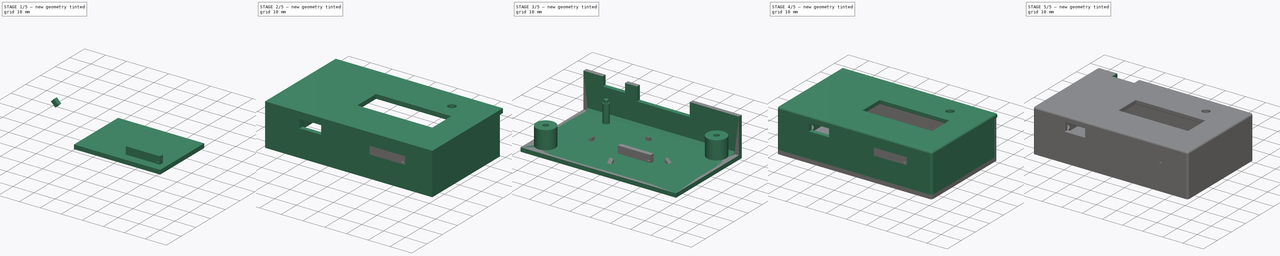
[diagram: build sequence overview — one tinted view per stage of 5, left to right]
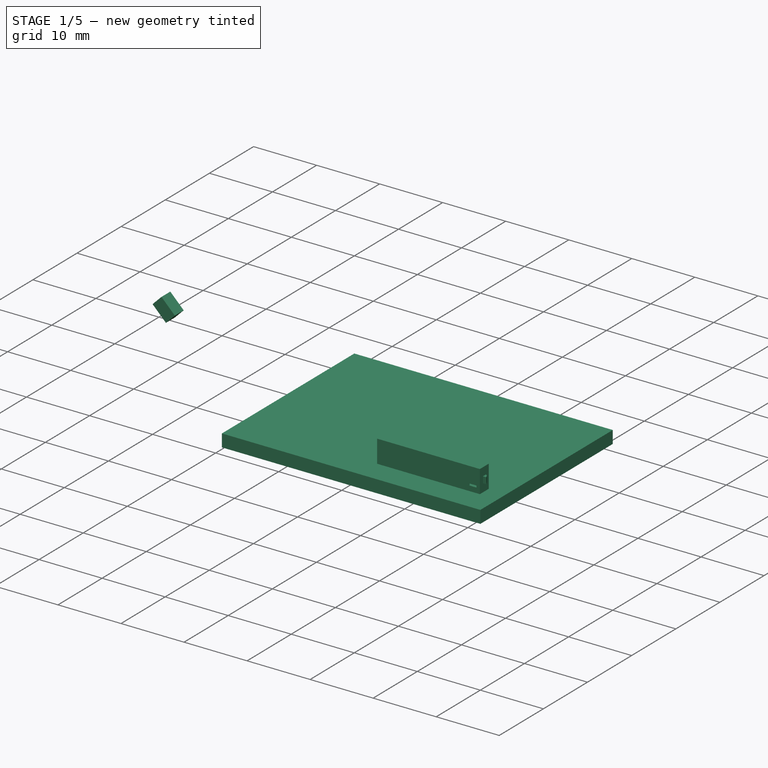
[diagram: stage 1 of 5 — iso view after this stage's code; geometry added in this stage tinted green]
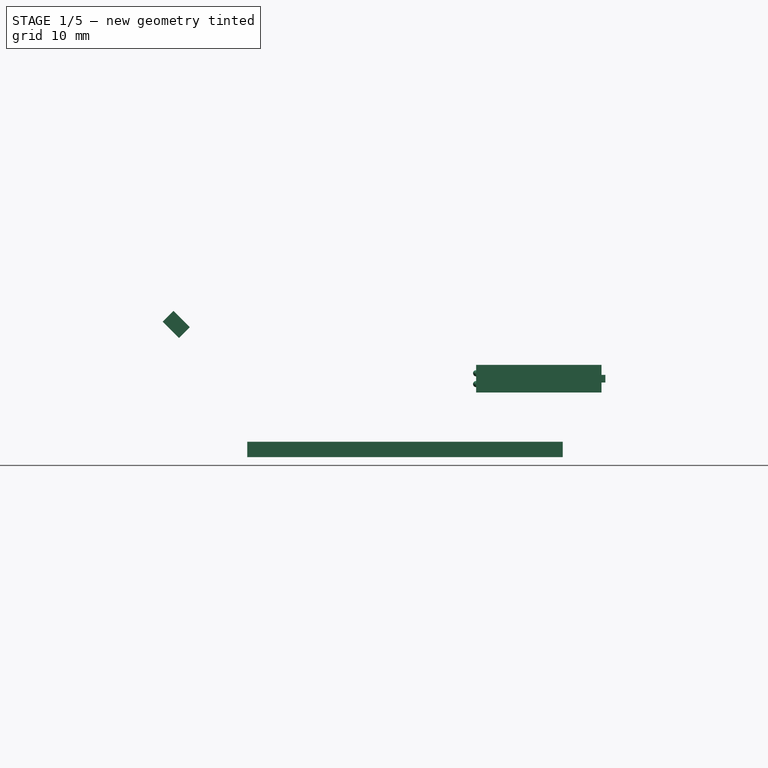
[diagram: stage 1 of 5 — front view after this stage's code; geometry added in this stage tinted green]
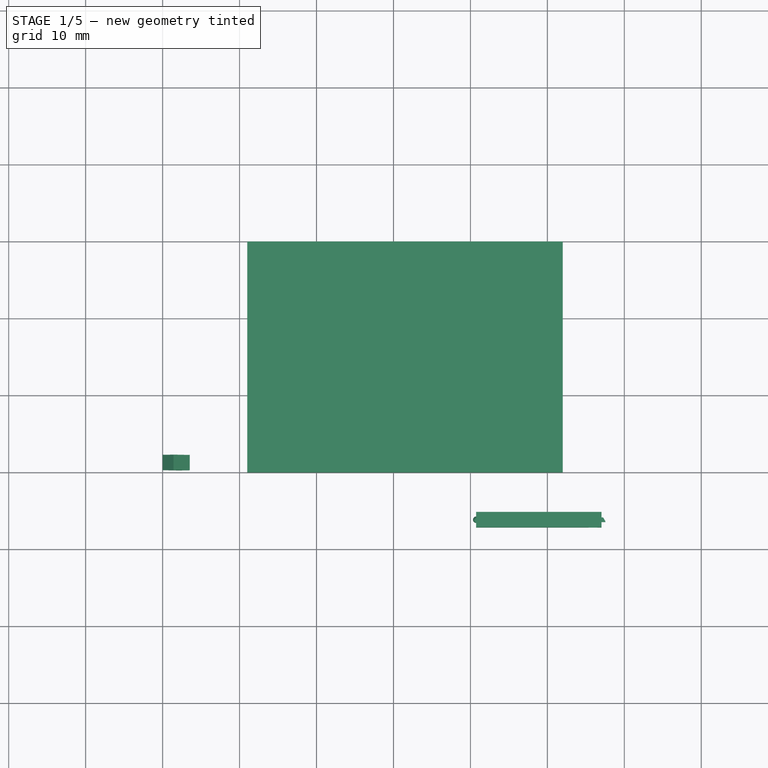
[diagram: stage 1 of 5 — top view after this stage's code; geometry added in this stage tinted green]
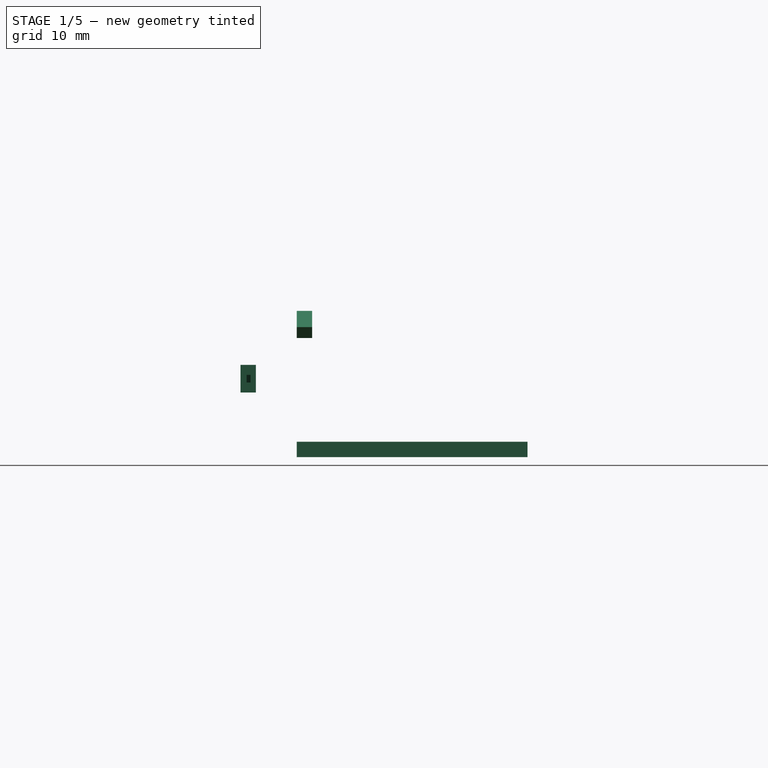
[diagram: stage 1 of 5 — right view after this stage's code; geometry added in this stage tinted green]
FCSTD DOCUMENT  (FreeCAD 0.19R24291 (Git))
Label: case
License: All rights reserved
LicenseURL: http://en.wikipedia.org/wiki/All_rights_reserved
objects: Sketcher::SketchObject×27, PartDesign::Pad×15, PartDesign::Fillet×13, PartDesign::Pocket×9, Part::Box×8, Part::Cut×8, Part::MultiFuse×4, App::FeaturePython×4, PartDesign::Body×3, PartDesign::ShapeBinder×2, Part::Sphere×2, Part::Chamfer×2, PartDesign::Chamfer×1, Part::Fillet×1, Part::Part2DObjectPython×1, Part::Extrusion×1, App::VRMLObject×1
note: 135 computed .brp shape members not serialized (recipe doc carries the construction recipe); baked Part::Feature solids carry a one-line shape summary decoded from their .brp

FEATURE [PartDesign::Body] Body  label="Tapa"
  Group = -> [Sketch,Sketch001,Pad,Sketch002,Pocket,Sketch003,Pocket001,Sketch004,Pad001,Sketch005,Pad002,Sketch006,Pocket002,Fillet,Fillet001,Fillet002,Fillet003,Fillet004,Sketch016,Pad008,Sketch018,Pocket006,Sketch021,Pad011,Sketch022,Pad012,Fillet015,Fillet016,Fillet017,Sketch023,Fillet020,Pocket007,Sketch026,Pocket008]
  Origin = -> Origin
  Tip = -> Pocket008
FEATURE [PartDesign::ShapeBinder] CopyPocket002
  TraceSupport = false
FEATURE [Sketcher::SketchObject] Sketch027
  ExternalGeometry = -> [CopyPocket002]
  FullyConstrained = false
  MapMode = 5
  Placement = pos=(2e-16,-7.31,0) rot=(1,0,0;1.5708rad)
  Support = -> [CopyPocket002]
  sketch-geometry (4):
    g0: LineSegment StartX=40.74 StartY=-3.6 StartZ=0 EndX=57.04 EndY=-3.6 EndZ=0
    g1: LineSegment StartX=57.04 StartY=-3.6 StartZ=0 EndX=57.04 EndY=-7.2 EndZ=0
    g2: LineSegment StartX=57.04 StartY=-7.2 StartZ=0 EndX=40.74 EndY=-7.2 EndZ=0
    g3: LineSegment StartX=40.74 StartY=-7.2 StartZ=0 EndX=40.74 EndY=-3.6 EndZ=0
  constraints (10):
    c: Coincident(g0,g1)
    c: Coincident(g1,g2)
    c: Coincident(g2,g3)
    c: Coincident(g3,g0)
    c: Horizontal(g0)
    c: Horizontal(g2)
    c: Vertical(g1)
    c: Vertical(g3)
    c: Coincident(g-4,g1)
    c: Coincident(g-3,g0)
FEATURE [PartDesign::Pad] Pad014
  AllowMultiFace = false
  Direction = (1,1,1)
  Length = 2
  Length2 = 100
  Profile = -> Sketch027
  Reversed = true
  Type = 0
FEATURE [PartDesign::Body] Body003  label="Cubo002"
  Group = -> [CopyPocket002,Sketch027,Pad014]
  Origin = -> Origin003
  Tip = -> Pad014
FEATURE [Part::Sphere] Sphere  label="Esfera"
  Angle1 = -90
  Angle2 = 90
  Angle3 = 360
  AttacherType = Attacher::AttachEngine3D
  Placement = pos=(40.74,-6.31,-4.7) rot=(0,0,1;0rad)
  Radius = 0.4
FEATURE [Part::Sphere] Sphere001  label="Esfera001"
  Angle1 = -90
  Angle2 = 90
  Angle3 = 360
  AttacherType = Attacher::AttachEngine3D
  Placement = pos=(40.74,-6.31,-6.1) rot=(0,0,1;0rad)
  Radius = 0.4
FEATURE [Part::Box] Box  label="Cubo"
  AttacherType = Attacher::AttachEngine3D
  Height = 1
  Length = 0.5
  Placement = pos=(57.04,-6.61,-5.9) rot=(0,0,1;0rad)
  Width = 0.6
FEATURE [Part::Chamfer] Chamfer001
  Base = -> Box
  Edges = 1 edges: [Edge7 r1=0.5 r2=0.3]
FEATURE [Part::Box] Box005  label="Cubo006"
  AttacherType = Attacher::AttachEngine3D
  Height = 2
  Length = 3
  Placement = pos=(0,0,2) rot=(0,1,0;0.785398rad)
  Width = 2
FEATURE [Part::Box] Box006  label="Cubo007"
  AttacherType = Attacher::AttachEngine3D
  Height = 2
  Length = 41
  Placement = pos=(11,0,-15.6) rot=(0,0,1;0rad)
  Width = 30
FEATURE [Part::Box] Box007  label="Cubo008"
  AttacherType = Attacher::AttachEngine3D
  Height = 2
  Length = 1.9
  Width = 1
FEATURE [Part::Box] Box008  label="Cubo009"
  AttacherType = Attacher::AttachEngine3D
  Height = 2
  Length = 2.5
  Placement = pos=(0,1,0) rot=(0,0,-1;0.471239rad)
  Width = 1
FEATURE [Part::Cut] Cut006
  Base = -> Box007
  Placement = pos=(56.5,-6.8,-6.4) rot=(0,0,1;3.14159rad)
  Tool = -> Box008
FEATURE [Part::Cut] Cut007
  Base = -> Body003
  Tool = -> Cut006
FEATURE [Part::MultiFuse] Fusion
  Shapes = -> [Cut007,Chamfer001,Sphere001,Sphere]
FEATURE [Part::Chamfer] Chamfer002  label="Tapita pines"
  Base = -> Fusion
  Edges = 1 edges r=0.2: [Edge17]
FEATURE [App::FeaturePython] Dimension  label="Distance"  # Draft dimension (typed FeaturePython)
  Diameter = false
  Dimline = (31.115,38.06,-19.3)
  Direction = (0,0,0)
  Distance = 76.85
  End = (69.54,38.06,-19.3)
  Normal = (0,0,-1)
  Start = (-7.31,38.06,-19.3)
FEATURE [App::FeaturePython] Dimension001  label="Distance001"  # Draft dimension (typed FeaturePython)
  Diameter = false
  Dimline = (68.54,15.875,-19.3)
  Direction = (0,0,0)
  Distance = 46.37
  End = (68.54,39.06,-19.3)
  Normal = (0,0,-1)
  Start = (68.54,-7.31,-19.3)
FEATURE [App::FeaturePython] Dimension002  label="Distance002"  # Draft dimension (typed FeaturePython)
  Diameter = false
  Dimline = (68.54,39.06,-9.65)
  Direction = (0,0,0)
  Distance = 19.3
  End = (68.54,39.06,-19.3)
  Normal = (0,0,1)
  Start = (68.54,39.06,0)
FEATURE [App::FeaturePython] Dimension003  label="Distance003"  # Draft dimension (typed FeaturePython)
  Diameter = false
  Dimline = (69.54,37.06,-8.65)
  Direction = (0,0,0)
  Distance = 17.3
  End = (69.54,37.06,-17.3)
  Normal = (0,0,-1)
  Start = (69.54,37.06,0)
FEATURE [App::VRMLObject] Tiny_thermomether001  label="PCB"
  Placement = pos=(0,0,-7.5) rot=(0,0,1;0rad)
  Resources = Tiny_thermomether001/JST_XH_S2B-XH-A_1x02_P2.50mm_Horizontal.wrl | Tiny_thermomether001/ssd1306_0.91.wrl | Tiny_thermomether001/PinHeader_1x04_P2.54mm_Vertical.wrl | Tiny_thermomether001/JST_XH_S3B-XH-A_1x03_P2.50mm_Horizontal.wrl | Tiny_thermomether001/Aosong_DHT11_5.5x12.0_P2.54mm.wrl | Tiny_thermomether001/C_1206_3216Metric.wrl | Tiny_thermomether001/PinHeader_1x06_P2.54mm_Horizontal.wrl | Tiny_thermomether001/R_1206_3216Metric.wrl | Tiny_thermomether001/SOIJ-8_5.3x5.3mm_P1.27mm.wrl | Tiny_thermomether001/SW_E-Switch_EG1224_SPDT_Angled.wrl | Tiny_thermomether001/SW_PUSH_6mm_H9.5mm.wrl | Tiny_thermomether001/tp4056.wrl | Tiny_thermomether001/PinHeader_1x01_P2.54mm_Vertical.wrl
note: 1 file-system path scrubbed to <path> (originals preserved in the JSON sidecar)
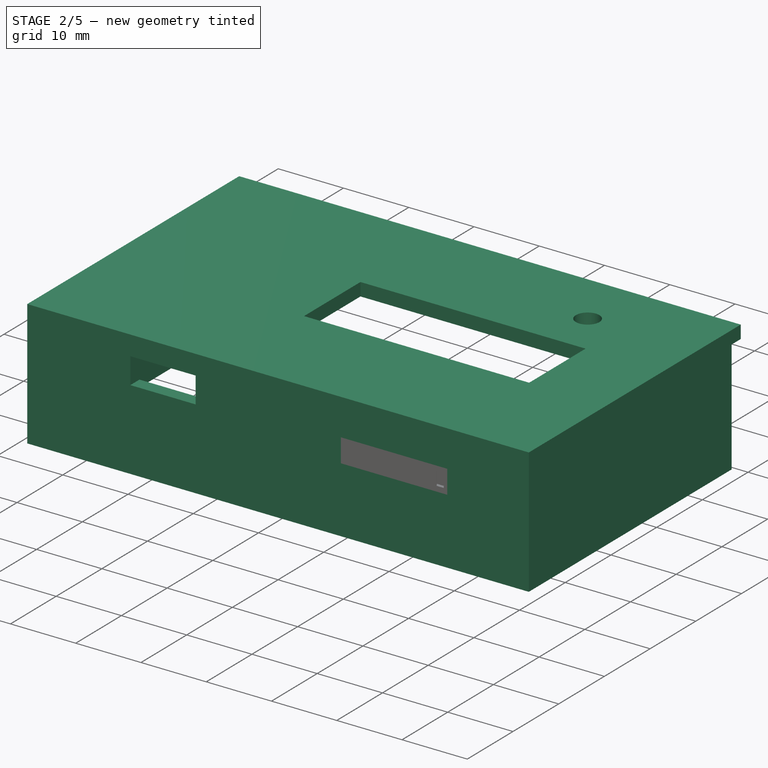
[diagram: stage 2 of 5 — iso view after this stage's code; geometry added in this stage tinted green]
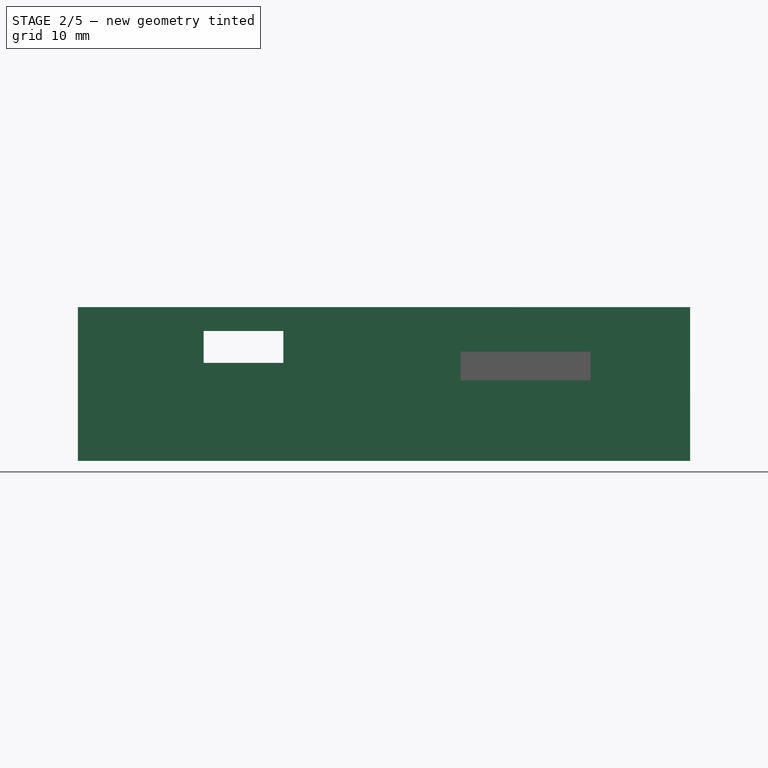
[diagram: stage 2 of 5 — front view after this stage's code; geometry added in this stage tinted green]
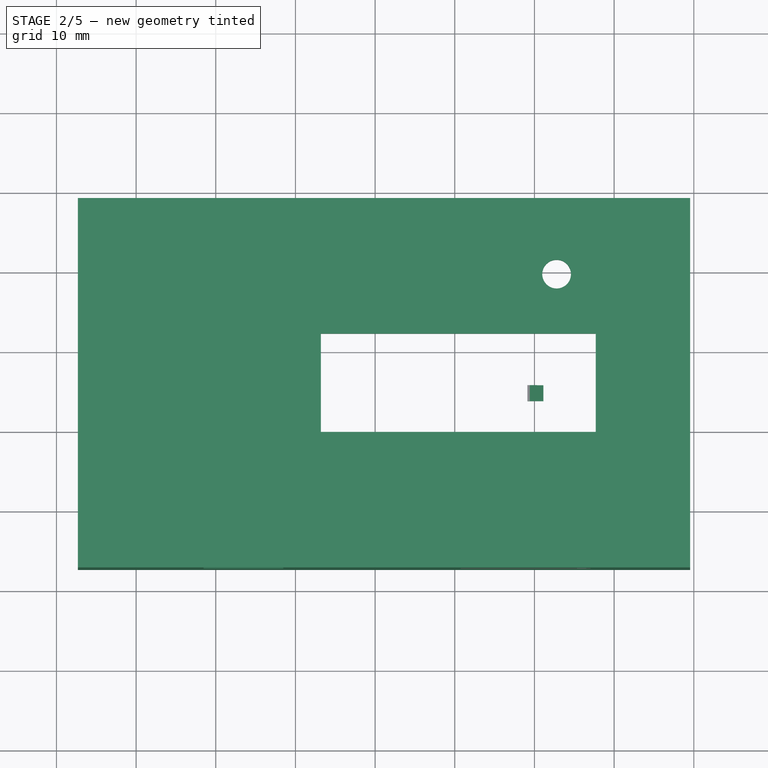
[diagram: stage 2 of 5 — top view after this stage's code; geometry added in this stage tinted green]
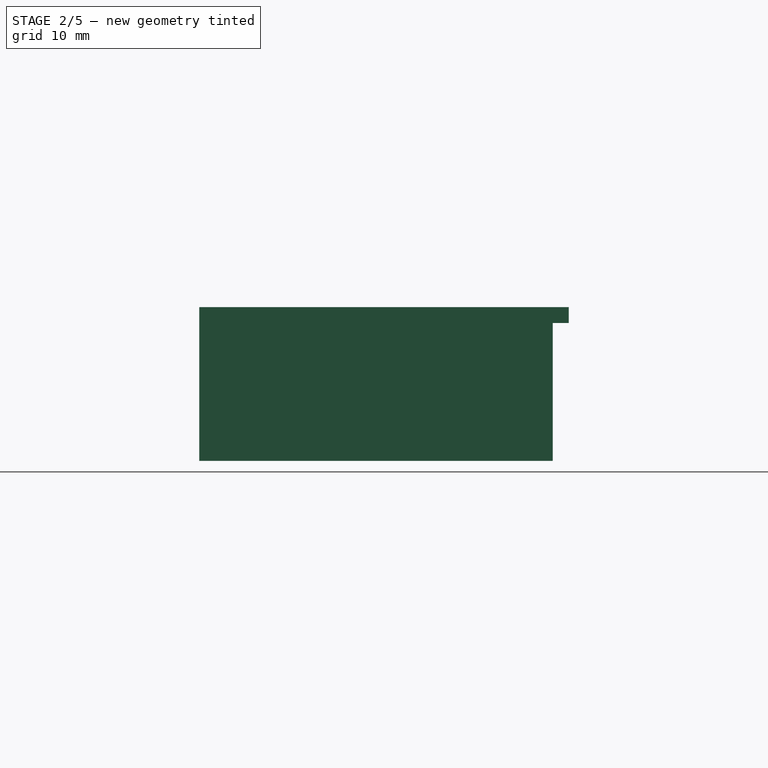
[diagram: stage 2 of 5 — right view after this stage's code; geometry added in this stage tinted green]
FEATURE [Sketcher::SketchObject] Sketch
  FullyConstrained = false
  MapMode = 5
  Support = -> [XY_Plane]
  sketch-geometry (16):
    g0: LineSegment StartX=0 StartY=0 StartZ=0 EndX=62.23 EndY=0 EndZ=0
    g1: LineSegment StartX=62.23 StartY=0 StartZ=0 EndX=62.23 EndY=31.75 EndZ=0
    g2: LineSegment StartX=62.23 StartY=31.75 StartZ=0 EndX=0 EndY=31.75 EndZ=0
    g3: LineSegment StartX=0 StartY=31.75 StartZ=0 EndX=0 EndY=0 EndZ=0
    g4: LineSegment StartX=-3.81 StartY=35.56 StartZ=0 EndX=66.04 EndY=35.56 EndZ=0
    g5: LineSegment StartX=66.04 StartY=35.56 StartZ=0 EndX=66.04 EndY=-3.81 EndZ=0
    g6: LineSegment StartX=66.04 StartY=-3.81 StartZ=0 EndX=-3.81 EndY=-3.81 EndZ=0
    g7: LineSegment StartX=-3.81 StartY=-3.81 StartZ=0 EndX=-3.81 EndY=35.56 EndZ=0
    g8: LineSegment StartX=-5.31 StartY=37.06 StartZ=0 EndX=67.54 EndY=37.06 EndZ=0
    g9: LineSegment StartX=67.54 StartY=37.06 StartZ=0 EndX=67.54 EndY=-5.31 EndZ=0
    g10: LineSegment StartX=67.54 StartY=-5.31 StartZ=0 EndX=-5.31 EndY=-5.31 EndZ=0
    g11: LineSegment StartX=-5.31 StartY=-5.31 StartZ=0 EndX=-5.31 EndY=37.06 EndZ=0
    g12: LineSegment StartX=-7.31 StartY=-7.31 StartZ=0 EndX=69.54 EndY=-7.31 EndZ=0
    g13: LineSegment StartX=69.54 StartY=-7.31 StartZ=0 EndX=69.54 EndY=39.06 EndZ=0
    g14: LineSegment StartX=69.54 StartY=39.06 StartZ=0 EndX=-7.31 EndY=39.06 EndZ=0
    g15: LineSegment StartX=-7.31 StartY=39.06 StartZ=0 EndX=-7.31 EndY=-7.31 EndZ=0
  constraints (47):
    c: Coincident(g0,g1)
    c: Coincident(g1,g2)
    c: Coincident(g2,g3)
    c: Coincident(g3,g0)
    c: Horizontal(g0)
    c: Horizontal(g2)
    c: Vertical(g1)
    c: Vertical(g3)
    c: Coincident(g0,g-1)
    c: Distance(g0) = 62.23
    c: Distance(g1) = 31.75
    c: Coincident(g4,g5)
    c: Coincident(g5,g6)
    c: Coincident(g6,g7)
    c: Coincident(g7,g4)
    c: Horizontal(g4)
    c: Horizontal(g6)
    c: Vertical(g5)
    c: Vertical(g7)
    c: DistanceY(g6,g0) = 3.81
    c: DistanceX(g6,g0) = 3.81
    c: DistanceX(g1,g4) = 3.81
    c: DistanceY(g1,g4) = 3.81
    c: Coincident(g8,g9)
    c: Coincident(g9,g10)
    c: Coincident(g10,g11)
    c: Coincident(g11,g8)
    c: Horizontal(g8)
    c: Horizontal(g10)
    c: Vertical(g9)
    c: Vertical(g11)
    c: DistanceX(g8,g4) = 1.5
    c: DistanceY(g4,g8) = 1.5
    c: DistanceX(g5,g9) = 1.5
    c: DistanceY(g9,g5) = 1.5
    c: Coincident(g12,g13)
    c: Coincident(g13,g14)
    c: Coincident(g14,g15)
    c: Coincident(g15,g12)
    c: Horizontal(g12)
    c: Horizontal(g14)
    c: Vertical(g13)
    c: Vertical(g15)
    c: DistanceY(g12,g10) = 2
    c: DistanceX(g12,g10) = 2
    c: DistanceX(g8,g13) = 2
    c: DistanceY(g8,g13) = 2
FEATURE [Sketcher::SketchObject] Sketch001
  ExternalGeometry = -> [Sketch]
  FullyConstrained = false
  MapMode = 5
  Support = -> [XY_Plane]
  sketch-geometry (4):
    g0: LineSegment StartX=-7.31 StartY=39.06 StartZ=0 EndX=69.54 EndY=39.06 EndZ=0
    g1: LineSegment StartX=69.54 StartY=39.06 StartZ=0 EndX=69.54 EndY=-7.31 EndZ=0
    g2: LineSegment StartX=69.54 StartY=-7.31 StartZ=0 EndX=-7.31 EndY=-7.31 EndZ=0
    g3: LineSegment StartX=-7.31 StartY=-7.31 StartZ=0 EndX=-7.31 EndY=39.06 EndZ=0
  constraints (10):
    c: Coincident(g0,g1)
    c: Coincident(g1,g2)
    c: Coincident(g2,g3)
    c: Coincident(g3,g0)
    c: Horizontal(g0)
    c: Horizontal(g2)
    c: Vertical(g1)
    c: Vertical(g3)
    c: Coincident(g0,g-4)
    c: Coincident(g1,g-6)
FEATURE [PartDesign::Pad] Pad
  AllowMultiFace = false
  Direction = (1,1,1)
  Length = 2
  Length2 = 100
  Profile = -> Sketch001
  Type = 0
FEATURE [Sketcher::SketchObject] Sketch002
  ExternalGeometry = -> [Sketch]
  FullyConstrained = false
  MapMode = 5
  Support = -> [XY_Plane]
  sketch-geometry (4):
    g0: LineSegment StartX=23.19 StartY=22.04 StartZ=0 EndX=57.69 EndY=22.04 EndZ=0
    g1: LineSegment StartX=57.69 StartY=22.04 StartZ=0 EndX=57.69 EndY=9.69 EndZ=0
    g2: LineSegment StartX=57.69 StartY=9.69 StartZ=0 EndX=23.19 EndY=9.69 EndZ=0
    g3: LineSegment StartX=23.19 StartY=9.69 StartZ=0 EndX=23.19 EndY=22.04 EndZ=0
  constraints (12):
    c: Coincident(g0,g1)
    c: Coincident(g1,g2)
    c: Coincident(g2,g3)
    c: Coincident(g3,g0)
    c: Horizontal(g0)
    c: Horizontal(g2)
    c: Vertical(g1)
    c: Vertical(g3)
    c: DistanceY(g-6,g1) = 13.5
    c: DistanceY(g1,g1) = 12.35
    c: DistanceX(g2,g1) = 34.5
    c: DistanceX(g-6,g2) = 27
FEATURE [PartDesign::Pocket] Pocket
  AllowMultiFace = false
  BaseFeature = -> Pad
  Length = 2
  Length2 = 100
  Profile = -> Sketch002
  Reversed = true
  Type = 0
FEATURE [Sketcher::SketchObject] Sketch003
  ExternalGeometry = -> [Sketch]
  FullyConstrained = false
  MapMode = 5
  Support = -> [XY_Plane]
  sketch-geometry (1):
    g0: Circle CenterX=52.78 CenterY=29.5 CenterZ=0 NormalX=0 NormalY=0 NormalZ=1 AngleXU=0 Radius=1.8
  constraints (3):
    c: DistanceX(g0,g-4) = 13.26
    c: DistanceY(g0,g-4) = 6.06
    c: Diameter(g0) = 3.6
FEATURE [PartDesign::Pocket] Pocket001
  AllowMultiFace = false
  BaseFeature = -> Pocket
  Length = 2
  Length2 = 100
  Profile = -> Sketch003
  Reversed = true
  Type = 0
FEATURE [Sketcher::SketchObject] Sketch004
  ExternalGeometry = -> [Sketch]
  FullyConstrained = false
  MapMode = 5
  Support = -> [XY_Plane]
  sketch-geometry (6):
    g0: Circle CenterX=62.23 CenterY=31.75 CenterZ=0 NormalX=0 NormalY=0 NormalZ=1 AngleXU=0 Radius=3.75
    g1: Circle CenterX=62.23 CenterY=31.75 CenterZ=0 NormalX=0 NormalY=0 NormalZ=1 AngleXU=0 Radius=1.3
    g2: Circle CenterX=0 CenterY=0 CenterZ=0 NormalX=0 NormalY=0 NormalZ=1 AngleXU=0 Radius=1.3
    g3: Circle CenterX=0 CenterY=0 CenterZ=0 NormalX=0 NormalY=0 NormalZ=1 AngleXU=0 Radius=3.75
    g4: Circle CenterX=62.23 CenterY=0 CenterZ=0 NormalX=0 NormalY=0 NormalZ=1 AngleXU=0 Radius=1.3
    g5: Circle CenterX=62.23 CenterY=0 CenterZ=0 NormalX=0 NormalY=0 NormalZ=1 AngleXU=0 Radius=3.75
  constraints (12):
    c: Coincident(g0,g-6)
    c: Coincident(g1,g0)
    c: Diameter(g1) = 2.6
    c: Diameter(g0) = 7.5
    c: Coincident(g2,g3)
    c: Equal(g1,g2) = 2.6
    c: Equal(g0,g3) = 7.5
    c: Coincident(g3,g-1)
    c: Coincident(g4,g5)
    c: Equal(g1,g4) = 2.6
    c: Equal(g0,g5) = 7.5
    c: Coincident(g5,g-6)
FEATURE [PartDesign::Pad] Pad001
  AllowMultiFace = false
  BaseFeature = -> Pocket001
  Direction = (1,1,1)
  Length = 6.7
  Length2 = 100
  Profile = -> Sketch004
  Reversed = true
  Type = 0
FEATURE [Sketcher::SketchObject] Sketch005
  ExternalGeometry = -> [Sketch]
  FullyConstrained = false
  MapMode = 5
  Support = -> [XY_Plane]
  sketch-geometry (8):
    g0: LineSegment StartX=-7.31 StartY=37.06 StartZ=0 EndX=-7.31 EndY=-7.31 EndZ=0
    g1: LineSegment StartX=-7.31 StartY=-7.31 StartZ=0 EndX=69.54 EndY=-7.31 EndZ=0
    g2: LineSegment StartX=69.54 StartY=-7.31 StartZ=0 EndX=69.54 EndY=37.06 EndZ=0
    g3: LineSegment StartX=-5.31 StartY=37.06 StartZ=0 EndX=-7.31 EndY=37.06 EndZ=0
    g4: LineSegment StartX=67.54 StartY=37.06 StartZ=0 EndX=69.54 EndY=37.06 EndZ=0
    g5: LineSegment StartX=67.54 StartY=37.06 StartZ=0 EndX=67.54 EndY=-5.31 EndZ=0
    g6: LineSegment StartX=67.54 StartY=-5.31 StartZ=0 EndX=-5.31 EndY=-5.31 EndZ=0
    g7: LineSegment StartX=-5.31 StartY=-5.31 StartZ=0 EndX=-5.31 EndY=37.06 EndZ=0
  constraints (18):
    c: Coincident(g0,g-7)
    c: Coincident(g1,g0)
    c: Coincident(g1,g-7)
    c: Coincident(g2,g1)
    c: Horizontal(g-5,g0)
    c: Vertical(g0)
    c: Vertical(g2)
    c: Horizontal(g-8,g2)
    c: Coincident(g3,g-5)
    c: Coincident(g3,g0)
    c: Coincident(g4,g-8)
    c: Coincident(g4,g2)
    c: Coincident(g5,g4)
    c: Coincident(g5,g-9)
    c: Coincident(g6,g5)
    c: Coincident(g6,g-9)
    c: Coincident(g7,g6)
    c: Coincident(g7,g3)
FEATURE [PartDesign::Pad] Pad002
  AllowMultiFace = false
  BaseFeature = -> Pad001
  Direction = (1,1,1)
  Length = 17.3
  Length2 = 100
  Profile = -> Sketch005
  Reversed = true
  Type = 0
FEATURE [Sketcher::SketchObject] Sketch006
  FullyConstrained = false
  MapMode = 5
  Placement = pos=(2e-16,-7.31,0) rot=(1,0,0;1.5708rad)
  Support = -> [Pad002]
  sketch-geometry (8):
    g0: LineSegment StartX=8.48 StartY=-1 StartZ=0 EndX=18.48 EndY=-1 EndZ=0
    g1: LineSegment StartX=18.48 StartY=-1 StartZ=0 EndX=18.48 EndY=-5 EndZ=0
    g2: LineSegment StartX=18.48 StartY=-5 StartZ=0 EndX=8.48 EndY=-5 EndZ=0
    g3: LineSegment StartX=8.48 StartY=-5 StartZ=0 EndX=8.48 EndY=-1 EndZ=0
    g4: LineSegment StartX=40.74 StartY=-3.6 StartZ=0 EndX=57.04 EndY=-3.6 EndZ=0
    g5: LineSegment StartX=57.04 StartY=-3.6 StartZ=0 EndX=57.04 EndY=-7.2 EndZ=0
    g6: LineSegment StartX=57.04 StartY=-7.2 StartZ=0 EndX=40.74 EndY=-7.2 EndZ=0
    g7: LineSegment StartX=40.74 StartY=-7.2 StartZ=0 EndX=40.74 EndY=-3.6 EndZ=0
  constraints (24):
    c: Coincident(g0,g1)
    c: Coincident(g1,g2)
    c: Coincident(g2,g3)
    c: Coincident(g3,g0)
    c: Horizontal(g0)
    c: Horizontal(g2)
    c: Vertical(g1)
    c: Vertical(g3)
    c: Coincident(g4,g5)
    c: Coincident(g5,g6)
    c: Coincident(g6,g7)
    c: Coincident(g7,g4)
    c: Horizontal(g4)
    c: Horizontal(g6)
    c: Vertical(g5)
    c: Vertical(g7)
    c: DistanceX(g2,g2) = 10
    c: DistanceY(g3,g3) = 4
    c: DistanceX(g-1,g2) = 8.48
    c: DistanceY(g0,g-1) = 1
    c: DistanceX(g-1,g4) = 40.74
    c: DistanceX(g4,g4) = 16.3
    c: DistanceY(g5,g5) = 3.6
    c: DistanceY(g4,g-1) = 3.6
FEATURE [PartDesign::Pocket] Pocket002
  AllowMultiFace = false
  BaseFeature = -> Pad002
  Length = 2
  Length2 = 100
  Profile = -> Sketch006
  Type = 0
FEATURE [Part::Box] Box004  label="Cubo005"
  AttacherType = Attacher::AttachEngine3D
  Height = 2
  Length = 2
  Width = 2
FEATURE [Part::Cut] Cut001
  Base = -> Box004
  Placement = pos=(13.115,15.875,-17.3) rot=(0,0,1;3.14159rad)
  Tool = -> Box005
FEATURE [Part::Cut] Cut002
  Base = -> Box004
  Placement = pos=(49.115,13.88,-17.3) rot=(0,-1,0;0rad)
  Tool = -> Box005
FEATURE [Part::Cut] Cut003
  Base = -> Box004
  Placement = pos=(30.05,2.375,-17.3) rot=(0,0,-1;1.5708rad)
  Tool = -> Box005
FEATURE [Part::Cut] Cut004
  Base = -> Box004
  Placement = pos=(32.05,27.375,-17.3) rot=(0,0,1;1.5708rad)
  Tool = -> Box005
FEATURE [Part::MultiFuse] Fusion002
  Shapes = -> [Cut001,Cut002,Cut003,Cut004]
FEATURE [Part::Cut] Cut005  label="Topes bateria"
  Base = -> Fusion002
  Tool = -> Box006
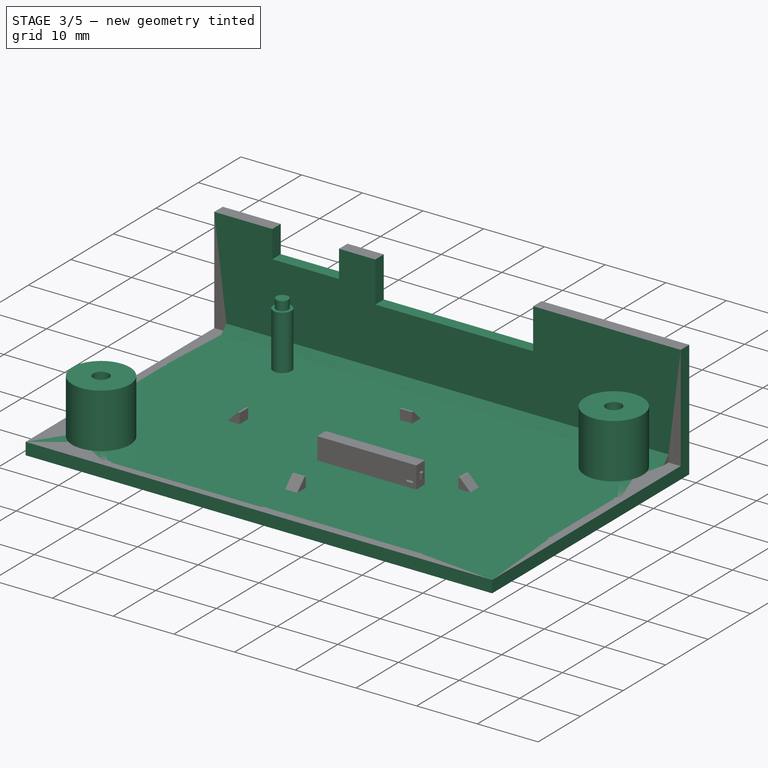
[diagram: stage 3 of 5 — iso view after this stage's code; geometry added in this stage tinted green]
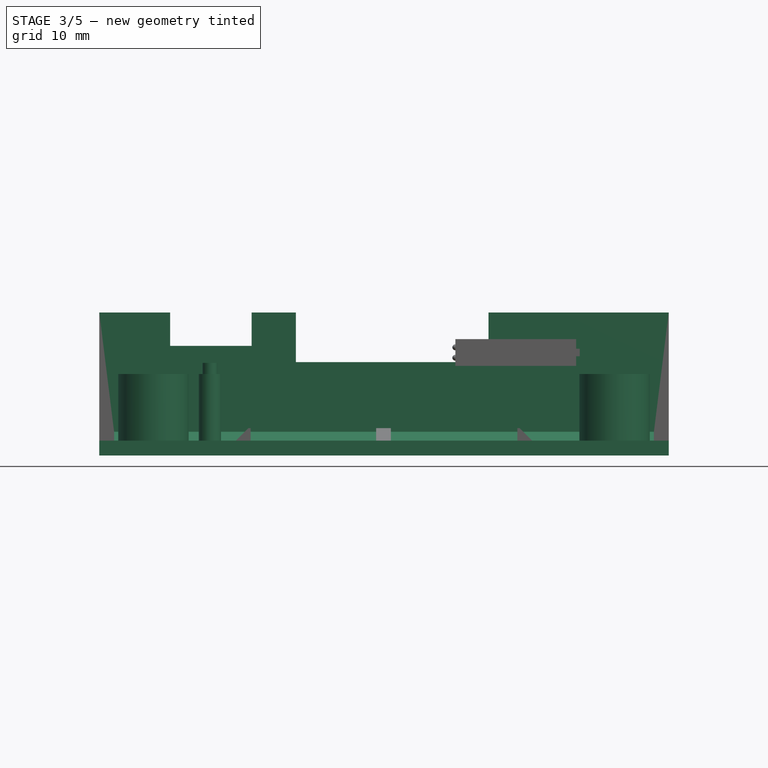
[diagram: stage 3 of 5 — front view after this stage's code; geometry added in this stage tinted green]
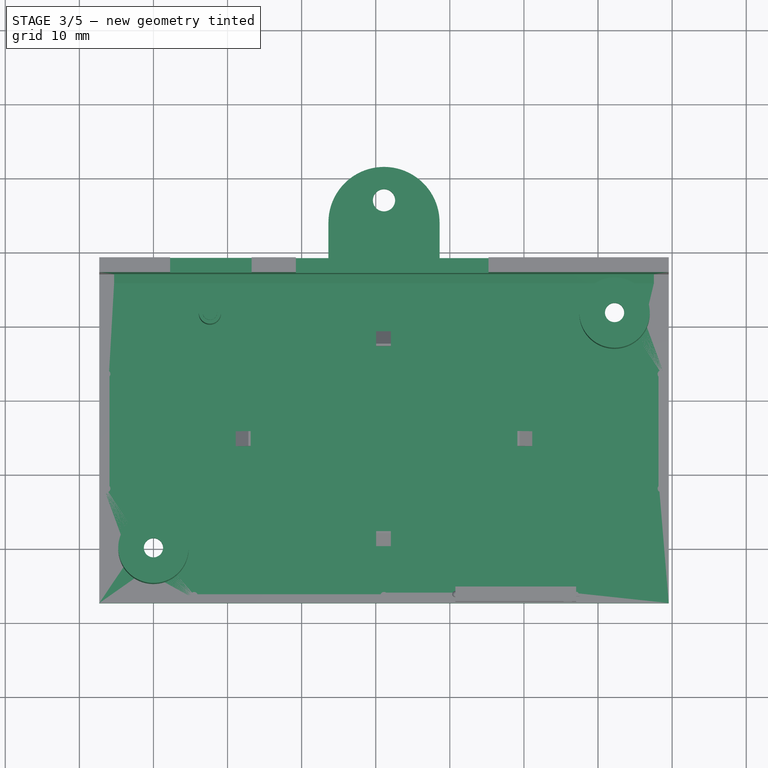
[diagram: stage 3 of 5 — top view after this stage's code; geometry added in this stage tinted green]
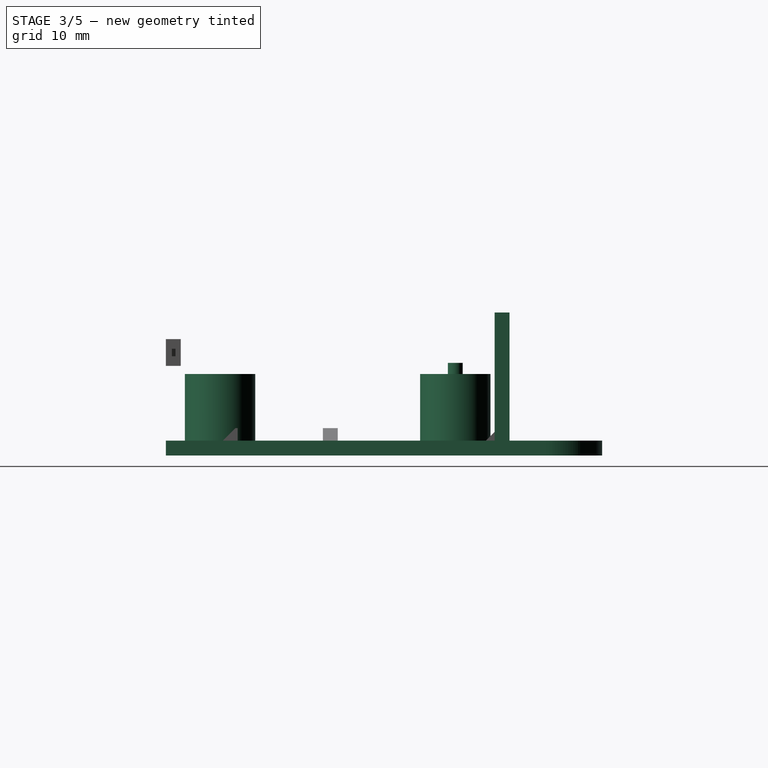
[diagram: stage 3 of 5 — right view after this stage's code; geometry added in this stage tinted green]
FEATURE [Sketcher::SketchObject] Sketch008
  FullyConstrained = false
  MapMode = 5
  Support = -> [XY_Plane002]
  sketch-geometry (16):
    g0: LineSegment StartX=0 StartY=0 StartZ=0 EndX=62.23 EndY=0 EndZ=0
    g1: LineSegment StartX=62.23 StartY=0 StartZ=0 EndX=62.23 EndY=31.75 EndZ=0
    g2: LineSegment StartX=62.23 StartY=31.75 StartZ=0 EndX=0 EndY=31.75 EndZ=0
    g3: LineSegment StartX=0 StartY=31.75 StartZ=0 EndX=0 EndY=0 EndZ=0
    g4: LineSegment StartX=-3.81 StartY=35.56 StartZ=0 EndX=66.04 EndY=35.56 EndZ=0
    g5: LineSegment StartX=66.04 StartY=35.56 StartZ=0 EndX=66.04 EndY=-3.81 EndZ=0
    g6: LineSegment StartX=66.04 StartY=-3.81 StartZ=0 EndX=-3.81 EndY=-3.81 EndZ=0
    g7: LineSegment StartX=-3.81 StartY=-3.81 StartZ=0 EndX=-3.81 EndY=35.56 EndZ=0
    g8: LineSegment StartX=-5.31 StartY=37.06 StartZ=0 EndX=67.54 EndY=37.06 EndZ=0
    g9: LineSegment StartX=67.54 StartY=37.06 StartZ=0 EndX=67.54 EndY=-5.31 EndZ=0
    g10: LineSegment StartX=67.54 StartY=-5.31 StartZ=0 EndX=-5.31 EndY=-5.31 EndZ=0
    g11: LineSegment StartX=-5.31 StartY=-5.31 StartZ=0 EndX=-5.31 EndY=37.06 EndZ=0
    g12: LineSegment StartX=-7.31 StartY=-7.31 StartZ=0 EndX=69.54 EndY=-7.31 EndZ=0
    g13: LineSegment StartX=69.54 StartY=-7.31 StartZ=0 EndX=69.54 EndY=39.06 EndZ=0
    g14: LineSegment StartX=69.54 StartY=39.06 StartZ=0 EndX=-7.31 EndY=39.06 EndZ=0
    g15: LineSegment StartX=-7.31 StartY=39.06 StartZ=0 EndX=-7.31 EndY=-7.31 EndZ=0
  constraints (47):
    c: Coincident(g0,g1)
    c: Coincident(g1,g2)
    c: Coincident(g2,g3)
    c: Coincident(g3,g0)
    c: Horizontal(g0)
    c: Horizontal(g2)
    c: Vertical(g1)
    c: Vertical(g3)
    c: Coincident(g0,g-1)
    c: Distance(g0) = 62.23
    c: Distance(g1) = 31.75
    c: Coincident(g4,g5)
    c: Coincident(g5,g6)
    c: Coincident(g6,g7)
    c: Coincident(g7,g4)
    c: Horizontal(g4)
    c: Horizontal(g6)
    c: Vertical(g5)
    c: Vertical(g7)
    c: DistanceY(g6,g0) = 3.81
    c: DistanceX(g6,g0) = 3.81
    c: DistanceX(g1,g4) = 3.81
    c: DistanceY(g1,g4) = 3.81
    c: Coincident(g8,g9)
    c: Coincident(g9,g10)
    c: Coincident(g10,g11)
    c: Coincident(g11,g8)
    c: Horizontal(g8)
    c: Horizontal(g10)
    c: Vertical(g9)
    c: Vertical(g11)
    c: DistanceX(g8,g4) = 1.5
    c: DistanceY(g4,g8) = 1.5
    c: DistanceX(g5,g9) = 1.5
    c: DistanceY(g9,g5) = 1.5
    c: Coincident(g12,g13)
    c: Coincident(g13,g14)
    c: Coincident(g14,g15)
    c: Coincident(g15,g12)
    c: Horizontal(g12)
    c: Horizontal(g14)
    c: Vertical(g13)
    c: Vertical(g15)
    c: DistanceY(g12,g10) = 2
    c: DistanceX(g12,g10) = 2
    c: DistanceX(g8,g13) = 2
    c: DistanceY(g8,g13) = 2
FEATURE [PartDesign::ShapeBinder] ReferencePocket002
  Placement = pos=(0,0,-17.3) rot=(0,0,1;0rad)
  Support = -> [Pocket002]
  TraceSupport = false
FEATURE [Sketcher::SketchObject] Sketch009
  ExternalGeometry = -> [Sketch008]
  FullyConstrained = false
  MapMode = 5
  Placement = pos=(0,0,-17.3) rot=(1,0,0;3.14159rad)
  Support = -> [ReferencePocket002]
  sketch-geometry (4):
    g0: LineSegment StartX=-7.31 StartY=7.31 StartZ=0 EndX=69.54 EndY=7.31 EndZ=0
    g1: LineSegment StartX=69.54 StartY=7.31 StartZ=0 EndX=69.54 EndY=-39.06 EndZ=0
    g2: LineSegment StartX=69.54 StartY=-39.06 StartZ=0 EndX=-7.31 EndY=-39.06 EndZ=0
    g3: LineSegment StartX=-7.31 StartY=-39.06 StartZ=0 EndX=-7.31 EndY=7.31 EndZ=0
  constraints (10):
    c: Coincident(g0,g1)
    c: Coincident(g1,g2)
    c: Coincident(g2,g3)
    c: Coincident(g3,g0)
    c: Horizontal(g0)
    c: Horizontal(g2)
    c: Vertical(g1)
    c: Vertical(g3)
    c: Coincident(g0,g-3)
    c: Coincident(g1,g-4)
FEATURE [PartDesign::Pad] Pad003
  AllowMultiFace = false
  Direction = (1,1,1)
  Length = 2
  Length2 = 100
  Placement = pos=(0,0,-17.3) rot=(0,0,1;0rad)
  Profile = -> Sketch009
  Type = 0
FEATURE [Sketcher::SketchObject] Sketch010
  ExternalGeometry = -> [Sketch008]
  FullyConstrained = false
  MapMode = 5
  Placement = pos=(0,0,-17.3) rot=(0,0,1;0rad)
  Support = -> [Pad003]
  sketch-geometry (4):
    g0: LineSegment StartX=-7.31 StartY=39.06 StartZ=0 EndX=69.54 EndY=39.06 EndZ=0
    g1: LineSegment StartX=69.54 StartY=39.06 StartZ=0 EndX=69.54 EndY=37.06 EndZ=0
    g2: LineSegment StartX=69.54 StartY=37.06 StartZ=0 EndX=-7.31 EndY=37.06 EndZ=0
    g3: LineSegment StartX=-7.31 StartY=37.06 StartZ=0 EndX=-7.31 EndY=39.06 EndZ=0
  constraints (11):
    c: Coincident(g0,g1)
    c: Coincident(g1,g2)
    c: Coincident(g2,g3)
    c: Coincident(g3,g0)
    c: Horizontal(g0)
    c: Horizontal(g2)
    c: Vertical(g1)
    c: Vertical(g3)
    c: Coincident(g0,g-4)
    c: PointOnObject(g-3,g2)
    c: PointOnObject(g-4,g1)
FEATURE [PartDesign::Pad] Pad004
  AllowMultiFace = false
  BaseFeature = -> Pad003
  Direction = (1,1,1)
  Length = 17.3
  Length2 = 100
  Placement = pos=(0,0,-17.3) rot=(0,0,1;0rad)
  Profile = -> Sketch010
  Type = 0
FEATURE [Sketcher::SketchObject] Sketch011
  FullyConstrained = false
  MapMode = 5
  Placement = pos=(0,39.06,0) rot=(0,0.707107,0.707107;3.14159rad)
  sketch-geometry (8):
    g0: LineSegment StartX=-45.22 StartY=0 StartZ=0 EndX=-19.22 EndY=0 EndZ=0
    g1: LineSegment StartX=-19.22 StartY=0 StartZ=0 EndX=-19.22 EndY=-6.7 EndZ=0
    g2: LineSegment StartX=-19.22 StartY=-6.7 StartZ=0 EndX=-45.22 EndY=-6.7 EndZ=0
    g3: LineSegment StartX=-45.22 StartY=-6.7 StartZ=0 EndX=-45.22 EndY=0 EndZ=0
    g4: LineSegment StartX=-13.25 StartY=1 StartZ=0 EndX=-2.25 EndY=1 EndZ=0
    g5: LineSegment StartX=-2.25 StartY=1 StartZ=0 EndX=-2.25 EndY=-4.5 EndZ=0
    g6: LineSegment StartX=-2.25 StartY=-4.5 StartZ=0 EndX=-13.25 EndY=-4.5 EndZ=0
    g7: LineSegment StartX=-13.25 StartY=-4.5 StartZ=0 EndX=-13.25 EndY=1 EndZ=0
  constraints (24):
    c: Coincident(g0,g1)
    c: Coincident(g1,g2)
    c: Coincident(g2,g3)
    c: Coincident(g3,g0)
    c: Horizontal(g0)
    c: Horizontal(g2)
    c: Vertical(g1)
    c: Vertical(g3)
    c: DistanceX(g0,g0) = 26
    c: DistanceX(g0,g-1) = 19.22
    c: DistanceY(g1,g-1) = 6.7
    c: Horizontal(g0,g-1)
    c: Coincident(g4,g5)
    c: Coincident(g5,g6)
    c: Coincident(g6,g7)
    c: Coincident(g7,g4)
    c: Horizontal(g4)
    c: Horizontal(g6)
    c: Vertical(g5)
    c: Vertical(g7)
    c: DistanceY(g7,g7) = 5.5
    c: DistanceX(g4,g4) = 11
    c: DistanceY(g-1,g4) = 1
    c: DistanceX(g4,g-1) = 2.25
FEATURE [PartDesign::Pocket] Pocket003
  AllowMultiFace = false
  BaseFeature = -> Pad004
  Length = 2
  Length2 = 100
  Placement = pos=(0,0,-17.3) rot=(0,0,1;0rad)
  Profile = -> Sketch011
  Type = 0
FEATURE [Sketcher::SketchObject] Sketch012
  ExternalGeometry = -> [Sketch]
  FullyConstrained = false
  MapMode = 5
  Placement = pos=(0,0,-17.3) rot=(0,0,1;0rad)
  Support = -> [Pocket003]
  sketch-geometry (4):
    g0: Circle CenterX=62.23 CenterY=31.75 CenterZ=0 NormalX=0 NormalY=0 NormalZ=1 AngleXU=0 Radius=4.75
    g1: Circle CenterX=62.23 CenterY=31.75 CenterZ=0 NormalX=0 NormalY=0 NormalZ=1 AngleXU=0 Radius=3.75
    g2: Circle CenterX=0 CenterY=0 CenterZ=0 NormalX=0 NormalY=0 NormalZ=1 AngleXU=0 Radius=3.75
    g3: Circle CenterX=0 CenterY=0 CenterZ=0 NormalX=0 NormalY=0 NormalZ=1 AngleXU=0 Radius=4.75
  constraints (8):
    c: Coincident(g0,g-6)
    c: Coincident(g1,g0)
    c: Diameter(g1) = 7.5
    c: Diameter(g0) = 9.5
    c: Coincident(g2,g3)
    c: Equal(g1,g2) = 2.6
    c: Equal(g0,g3) = 7.5
    c: Coincident(g3,g-1)
FEATURE [Sketcher::SketchObject] Sketch013
  ExternalGeometry = -> [Sketch008]
  FullyConstrained = false
  MapMode = 5
  Placement = pos=(0,0,-17.3) rot=(0,0,1;0rad)
  sketch-geometry (2):
    g0: Circle CenterX=62.23 CenterY=31.75 CenterZ=0 NormalX=0 NormalY=0 NormalZ=1 AngleXU=0 Radius=3.75
    g1: Circle CenterX=0 CenterY=0 CenterZ=0 NormalX=0 NormalY=0 NormalZ=1 AngleXU=0 Radius=3.75
  constraints (4):
    c: Coincident(g1,g-1)
    c: Diameter(g0) = 7.5
    c: Coincident(g-3,g0)
    c: Equal(g1,g0)
FEATURE [PartDesign::Pocket] Pocket004
  AllowMultiFace = false
  BaseFeature = -> Pocket003
  Length = 2
  Length2 = 100
  Placement = pos=(0,0,-17.3) rot=(0,0,1;0rad)
  Profile = -> Sketch013
  Type = 0
FEATURE [PartDesign::Pad] Pad005
  AllowMultiFace = false
  BaseFeature = -> Pocket004
  Direction = (1,1,1)
  Length = 9
  Length2 = 100
  Placement = pos=(0,0,-17.3) rot=(0,0,1;0rad)
  Profile = -> Sketch012
  Type = 0
FEATURE [Sketcher::SketchObject] Sketch014
  ExternalGeometry = -> [Sketch008,Pad005]
  FullyConstrained = false
  MapMode = 5
  Placement = pos=(0,0,-8.3) rot=(0,0,1;0rad)
  Support = -> [Pad005]
  sketch-geometry (4):
    g0: Circle CenterX=62.23 CenterY=31.75 CenterZ=0 NormalX=0 NormalY=0 NormalZ=1 AngleXU=0 Radius=3.75
    g1: Circle CenterX=0 CenterY=0 CenterZ=0 NormalX=0 NormalY=0 NormalZ=1 AngleXU=0 Radius=3.75
    g2: Circle CenterX=0 CenterY=0 CenterZ=0 NormalX=0 NormalY=0 NormalZ=1 AngleXU=0 Radius=1.3
    g3: Circle CenterX=62.23 CenterY=31.75 CenterZ=0 NormalX=0 NormalY=0 NormalZ=1 AngleXU=0 Radius=1.3
  constraints (10):
    c: Coincident(g0,g-4)
    c: Coincident(g1,g-1)
    c: Equal(g-4,g0)
    c: Equal(g1,g0)
    c: Coincident(g2,g1)
    c: Coincident(g3,g0)
    c: Diameter(g3) = 2.6
    c: Equal(g2,g3)
    c: Coincident(g-3,g0)
    c: Equal(g-5,g0)
FEATURE [PartDesign::Pad] Pad006
  AllowMultiFace = false
  BaseFeature = -> Pad005
  Direction = (1,1,1)
  Length = 2.5
  Length2 = 100
  Placement = pos=(0,0,-17.3) rot=(0,0,1;0rad)
  Profile = -> Sketch014
  Reversed = true
  Type = 0
FEATURE [Sketcher::SketchObject] Sketch015
  ExternalGeometry = -> [Sketch008]
  FullyConstrained = false
  MapMode = 5
  Placement = pos=(0,0,-17.3) rot=(0,0,1;0rad)
  Support = -> [Pad006]
  sketch-geometry (4):
    g0: LineSegment StartX=-5.31 StartY=37.06 StartZ=0 EndX=67.54 EndY=37.06 EndZ=0
    g1: LineSegment StartX=67.54 StartY=37.06 StartZ=0 EndX=67.54 EndY=35.86 EndZ=0
    g2: LineSegment StartX=67.54 StartY=35.86 StartZ=0 EndX=-5.31 EndY=35.86 EndZ=0
    g3: LineSegment StartX=-5.31 StartY=35.86 StartZ=0 EndX=-5.31 EndY=37.06 EndZ=0
  constraints (12):
    c: Coincident(g0,g1)
    c: Coincident(g1,g2)
    c: Coincident(g2,g3)
    c: Coincident(g3,g0)
    c: Horizontal(g0)
    c: Horizontal(g2)
    c: Vertical(g1)
    c: Vertical(g3)
    c: Distance(g1) = 1.2
    c: Horizontal(g-4,g0)
    c: DistanceX(g-3,g0) = 2
    c: DistanceX(g0,g-3) = 2
FEATURE [PartDesign::Pad] Pad007
  AllowMultiFace = false
  BaseFeature = -> Pad006
  Direction = (1,1,1)
  Length = 1.2
  Length2 = 100
  Placement = pos=(0,0,-17.3) rot=(0,0,1;0rad)
  Profile = -> Sketch015
  Type = 0
FEATURE [Sketcher::SketchObject] Sketch017
  ExternalGeometry = -> [Sketch]
  FullyConstrained = false
  MapMode = 5
  Placement = pos=(0,0,-17.3) rot=(0,0,1;0rad)
  Support = -> [Pad007]
  sketch-geometry (7):
    g0: Circle CenterX=5.49 CenterY=-6.31 CenterZ=0 NormalX=0 NormalY=0 NormalZ=1 AngleXU=0 Radius=0.5
    g1: Circle CenterX=31.115 CenterY=-6.31 CenterZ=0 NormalX=0 NormalY=0 NormalZ=1 AngleXU=0 Radius=0.5
    g2: Circle CenterX=56.74 CenterY=-6.31 CenterZ=0 NormalX=0 NormalY=0 NormalZ=1 AngleXU=0 Radius=0.5
    g3: Circle CenterX=68.54 CenterY=8.146 CenterZ=0 NormalX=0 NormalY=0 NormalZ=1 AngleXU=0 Radius=0.5
    g4: Circle CenterX=68.54 CenterY=23.604 CenterZ=0 NormalX=0 NormalY=0 NormalZ=1 AngleXU=0 Radius=0.5
    g5: Circle CenterX=-6.31 CenterY=8.146 CenterZ=0 NormalX=0 NormalY=0 NormalZ=1 AngleXU=0 Radius=0.5
    g6: Circle CenterX=-6.31 CenterY=23.604 CenterZ=0 NormalX=0 NormalY=0 NormalZ=1 AngleXU=0 Radius=0.5
  constraints (23):
    c: Vertical(g5,g6)
    c: Vertical(g3,g4)
    c: Horizontal(g5,g3)
    c: Horizontal(g6,g4)
    c: Horizontal(g1,g0)
    c: Horizontal(g0,g2)
    c: Diameter(g1) = 1
    c: Equal(g1,g0)
    c: Equal(g0,g2)
    c: Equal(g2,g3)
    c: Equal(g3,g4)
    c: Equal(g4,g5)
    c: Equal(g5,g6)
    c: DistanceX(g-4,g5) = 1
    c: DistanceX(g3,g-5) = 1
    c: DistanceX(g-4,g1) = 38.425
    c: DistanceX(g-3,g-3) = 76.85
    c: DistanceX(g-4,g0) = 12.8
    c: DistanceX(g2,g-5) = 12.8
    c: DistanceY(g-5,g-5) = -46.37
    c: DistanceY(g-5,g3) = 15.456
    c: DistanceY(g-5,g2) = 1
    c: DistanceY(g4,g-5) = 15.456
FEATURE [PartDesign::Pocket] Pocket005
  AllowMultiFace = false
  BaseFeature = -> Pad007
  Length = 1.25
  Length2 = 100
  Placement = pos=(0,0,-17.3) rot=(0,0,1;0rad)
  Profile = -> Sketch017
  Reversed = true
  Type = 0
FEATURE [PartDesign::Chamfer] Chamfer
  Angle = 45
  Base = -> Pocket005 [Edge53]
  BaseFeature = -> Pocket005
  ChamferType = 0
  FlipDirection = false
  Placement = pos=(0,0,-17.3) rot=(0,0,1;0rad)
  Size = 1.19
  Size2 = 1
  SupportTransform = false
FEATURE [Sketcher::SketchObject] Sketch019
  FullyConstrained = false
  MapMode = 5
  Placement = pos=(0,0,-17.3) rot=(0,0,1;0rad)
  Support = -> [Chamfer]
  sketch-geometry (1):
    g0: Circle CenterX=7.62 CenterY=31.75 CenterZ=0 NormalX=0 NormalY=0 NormalZ=1 AngleXU=0 Radius=1.5
  constraints (3):
    c: DistanceX(g-2,g0) = 7.62
    c: DistanceY(g-1,g0) = 31.75
    c: Radius(g0) = 1.5
FEATURE [PartDesign::Pad] Pad009
  AllowMultiFace = false
  BaseFeature = -> Chamfer
  Direction = (1,1,1)
  Length = 9
  Length2 = 100
  Placement = pos=(0,0,-17.3) rot=(0,0,1;0rad)
  Profile = -> Sketch019
  Type = 0
FEATURE [Sketcher::SketchObject] Sketch020
  FullyConstrained = false
  MapMode = 5
  Placement = pos=(0,0,-8.3) rot=(0,0,1;0rad)
  Support = -> [Pad009]
  sketch-geometry (1):
    g0: Circle CenterX=7.62 CenterY=31.75 CenterZ=0 NormalX=0 NormalY=0 NormalZ=1 AngleXU=0 Radius=1
FEATURE [PartDesign::Pad] Pad010
  AllowMultiFace = false
  BaseFeature = -> Pad009
  Direction = (1,1,1)
  Length = 1.5
  Length2 = 100
  Placement = pos=(0,0,-17.3) rot=(0,0,1;0rad)
  Profile = -> Sketch020
  Type = 0
FEATURE [Sketcher::SketchObject] Sketch023
  ExternalGeometry = -> [Fillet017]
  FullyConstrained = false
  MapMode = 5
  Placement = pos=(40.74,1.2e-15,0) rot=(0.57735,0.57735,0.57735;2.0944rad)
  Support = -> [Fillet017]
  sketch-geometry (2):
    g0: Circle CenterX=-6.31 CenterY=-4.7 CenterZ=0 NormalX=0 NormalY=0 NormalZ=1 AngleXU=0 Radius=0.4
    g1: Circle CenterX=-6.31 CenterY=-6.1 CenterZ=0 NormalX=0 NormalY=0 NormalZ=1 AngleXU=0 Radius=0.4
  constraints (6):
    c: Vertical(g1,g0)
    c: DistanceX(g-5,g0) = 1
    c: DistanceY(g0,g-5) = 1.1
    c: DistanceY(g-6,g1) = 1.1
    c: Diameter(g0) = 0.8
    c: Equal(g1,g0)
FEATURE [Sketcher::SketchObject] Sketch024
  ExternalGeometry = -> [Pad010]
  FullyConstrained = false
  MapMode = 5
  Placement = pos=(0,39.06,-17.3) rot=(0,0.707107,0.707107;3.14159rad)
  Support = -> [Pad010]
  sketch-geometry (4):
    g0: LineSegment StartX=-43.615 StartY=0 StartZ=0 EndX=-18.615 EndY=0 EndZ=0
    g1: LineSegment StartX=-18.615 StartY=0 StartZ=0 EndX=-18.615 EndY=-2 EndZ=0
    g2: LineSegment StartX=-18.615 StartY=-2 StartZ=0 EndX=-43.615 EndY=-2 EndZ=0
    g3: LineSegment StartX=-43.615 StartY=-2 StartZ=0 EndX=-43.615 EndY=0 EndZ=0
  constraints (12):
    c: Coincident(g0,g1)
    c: Coincident(g1,g2)
    c: Coincident(g2,g3)
    c: Coincident(g3,g0)
    c: Horizontal(g0)
    c: Horizontal(g2)
    c: Vertical(g1)
    c: Vertical(g3)
    c: PointOnObject(g0,g-1)
    c: DistanceY(g1,g1) = 2
    c: DistanceX(g0,g0) = 25
    c: DistanceX(g1,g-3) = 25.925
FEATURE [Sketcher::SketchObject] Sketch025
  ExternalGeometry = -> [Sketch008]
  FullyConstrained = false
  MapMode = 5
  Placement = pos=(0,0,-19.3) rot=(1,0,0;3.14159rad)
  Support = -> [Pad010]
  sketch-geometry (5):
    g0: LineSegment StartX=38.615 StartY=-39.06 StartZ=0 EndX=38.615 EndY=-44.06 EndZ=0
    g1: LineSegment StartX=38.615 StartY=-39.06 StartZ=0 EndX=23.615 EndY=-39.06 EndZ=0
    g2: LineSegment StartX=23.615 StartY=-39.06 StartZ=0 EndX=23.615 EndY=-44.06 EndZ=0
    g3: ArcOfCircle CenterX=31.115 CenterY=-44.06 CenterZ=0 NormalX=0 NormalY=0 NormalZ=1 AngleXU=0 Radius=7.5 StartAngle=3.14159 EndAngle=6.28319
    g4: Circle CenterX=31.115 CenterY=-47.06 CenterZ=0 NormalX=0 NormalY=0 NormalZ=1 AngleXU=0 Radius=1.5
  constraints (16):
    c: PointOnObject(g0,g-3)
    c: Vertical(g0)
    c: DistanceX(g0,g-3) = 30.925
    c: Coincident(g1,g0)
    c: Horizontal(g1)
    c: Vertical(g2)
    c: Horizontal(g2,g0)
    c: DistanceX(g1,g0) = 15
    c: Coincident(g1,g2)
    c: DistanceY(g2,g2) = 5
    c: Coincident(g3,g0)
    c: Coincident(g3,g2)
    c: Horizontal(g3,g2)
    c: Vertical(g4,g3)
    c: Radius(g4) = 1.5
    c: DistanceY(g4,g3) = 3
FEATURE [PartDesign::Pad] Pad013
  AllowMultiFace = false
  BaseFeature = -> Pad010
  Direction = (1,1,1)
  Length = 2
  Length2 = 100
  Placement = pos=(0,0,-17.3) rot=(0,0,1;0rad)
  Profile = -> Sketch025
  Reversed = true
  Type = 0
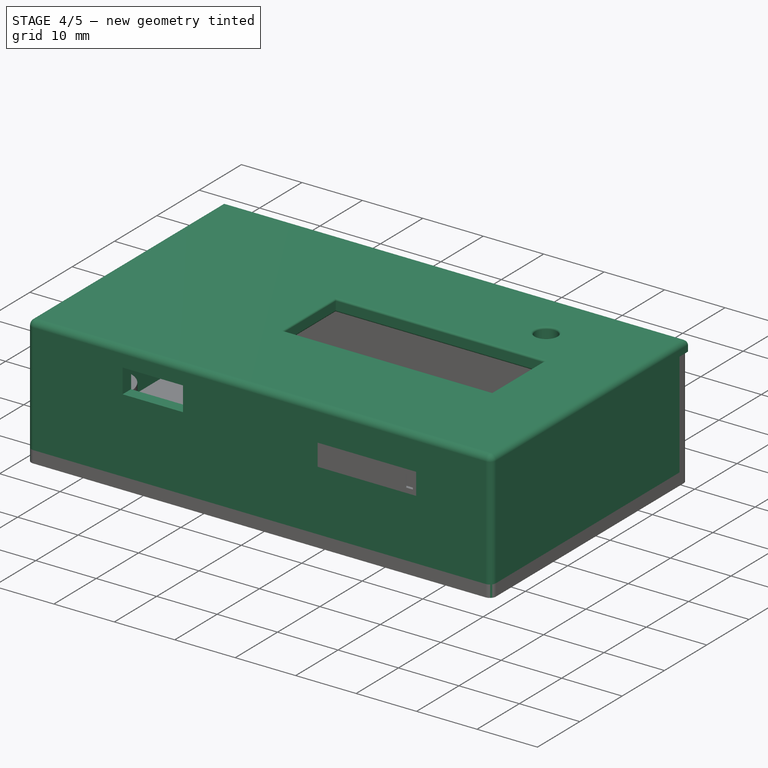
[diagram: stage 4 of 5 — iso view after this stage's code; geometry added in this stage tinted green]
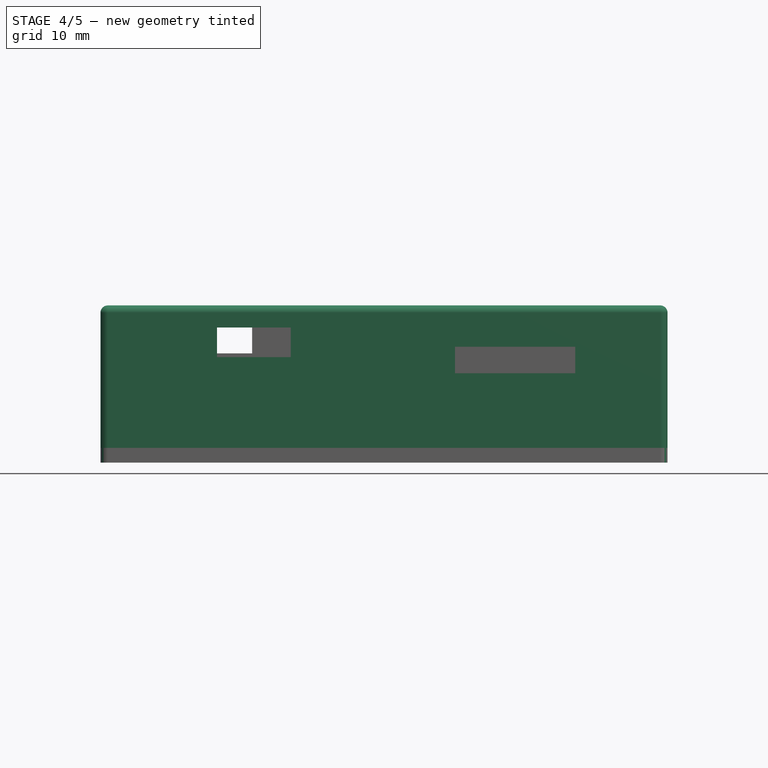
[diagram: stage 4 of 5 — front view after this stage's code; geometry added in this stage tinted green]
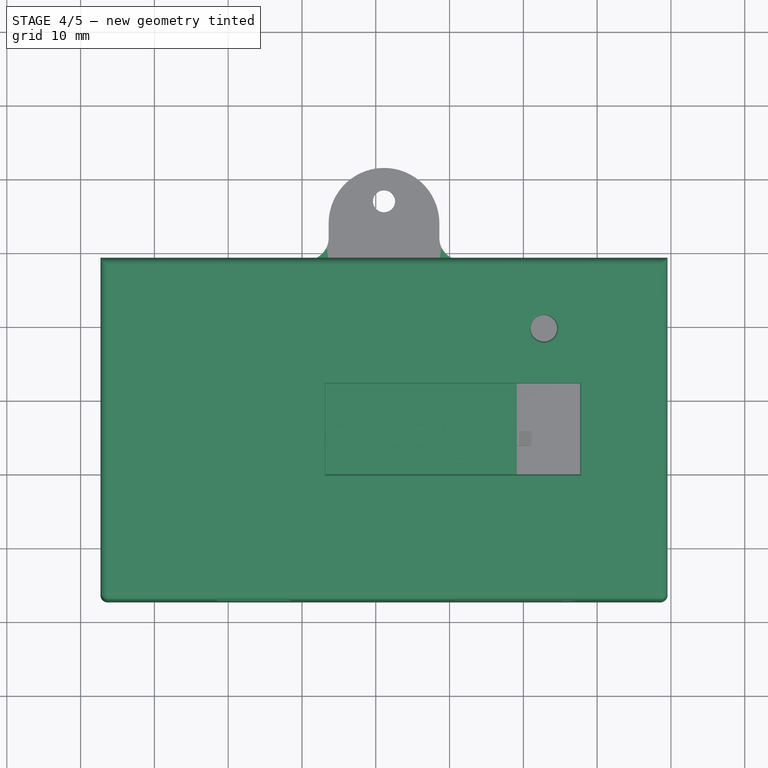
[diagram: stage 4 of 5 — top view after this stage's code; geometry added in this stage tinted green]
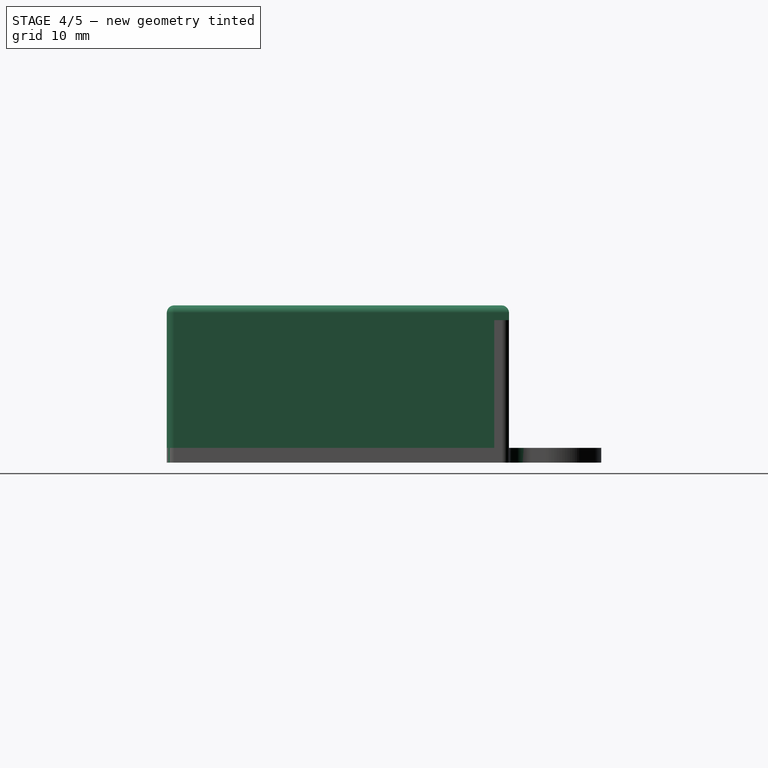
[diagram: stage 4 of 5 — right view after this stage's code; geometry added in this stage tinted green]
FEATURE [PartDesign::Fillet] Fillet
  Base = -> Pocket002 [Edge26,Edge8,Edge5,Edge34,Edge12,Edge9,Edge36,Edge4]
  BaseFeature = -> Pocket002
  Radius = 1
  SupportTransform = false
FEATURE [PartDesign::Fillet] Fillet001
  Base = -> Fillet [Edge24,Edge43,Edge42,Edge40,Edge39,Edge41,Edge19,Edge20,Edge22,Edge21]
  BaseFeature = -> Fillet
  Radius = 0.3
  SupportTransform = false
FEATURE [PartDesign::Fillet] Fillet018
  Base = -> Pad013 [Edge92,Edge86]
  BaseFeature = -> Pad013
  Placement = pos=(0,0,-17.3) rot=(0,0,1;0rad)
  Radius = 3
  SupportTransform = false
FEATURE [PartDesign::Fillet] Fillet019
  Base = -> Fillet018 [Edge39,Edge29,Edge47,Edge17]
  BaseFeature = -> Fillet018
  Placement = pos=(0,0,-17.3) rot=(0,0,1;0rad)
  Radius = 1
  SupportTransform = false
FEATURE [PartDesign::Fillet] Fillet021
  Base = -> Fillet019 [Edge37,Edge36,Edge35,Edge31,Edge30,Edge28]
  BaseFeature = -> Fillet019
  Placement = pos=(0,0,-17.3) rot=(0,0,1;0rad)
  Radius = 0.3
  SupportTransform = false
FEATURE [PartDesign::Fillet] Fillet022
  Base = -> Fillet021 [Edge160,Edge121,Edge115,Edge110]
  BaseFeature = -> Fillet021
  Placement = pos=(0,0,-17.3) rot=(0,0,1;0rad)
  Radius = 0.3
  SupportTransform = false
FEATURE [Part::Box] Box002  label="Cubo003"
  AttacherType = Attacher::AttachEngine3D
  Height = 6
  Length = 36
  Width = 25
FEATURE [Part::Fillet] Fillet023
  Base = -> Box002
  Edges = 4 edges r=1.5: [Edge9,Edge10,Edge11,Edge12]
FEATURE [Part::Box] Box003  label="Cubo004"
  AttacherType = Attacher::AttachEngine3D
  Height = 2.5
  Length = 1.35
  Placement = pos=(0,-3,1.75) rot=(0,0,1;0rad)
  Width = 4
FEATURE [Part::Part2DObjectPython] ShapeString  # Draft 2D object (typed FeaturePython)
  FontFile = <path>
  Placement = pos=(6.04,10.49,6) rot=(0,0,1;0rad)
  Size = 3
  String = Battery
  Tracking = 0
FEATURE [Part::Extrusion] Extrude
  Base = -> ShapeString
  Dir = (0,0,1)
  DirMode = 2
  FaceMakerClass = Part::FaceMakerBullseye
  LengthFwd = 0.5
  LengthRev = 0
  Placement = pos=(0,0,-0.5) rot=(0,0,1;0rad)
  Solid = false
  Symmetric = false
FEATURE [Part::Cut] Cut
  Base = -> Fillet023
  Tool = -> Extrude
FEATURE [Part::MultiFuse] Fusion001  label="Battery"
  Placement = pos=(13.115,2.375,-17.24) rot=(0,0,1;0rad)
  Shapes = -> [Cut,Box003]
FEATURE [Part::MultiFuse] Fusion003  label="Base"
  Shapes = -> [Body002,Cut005]
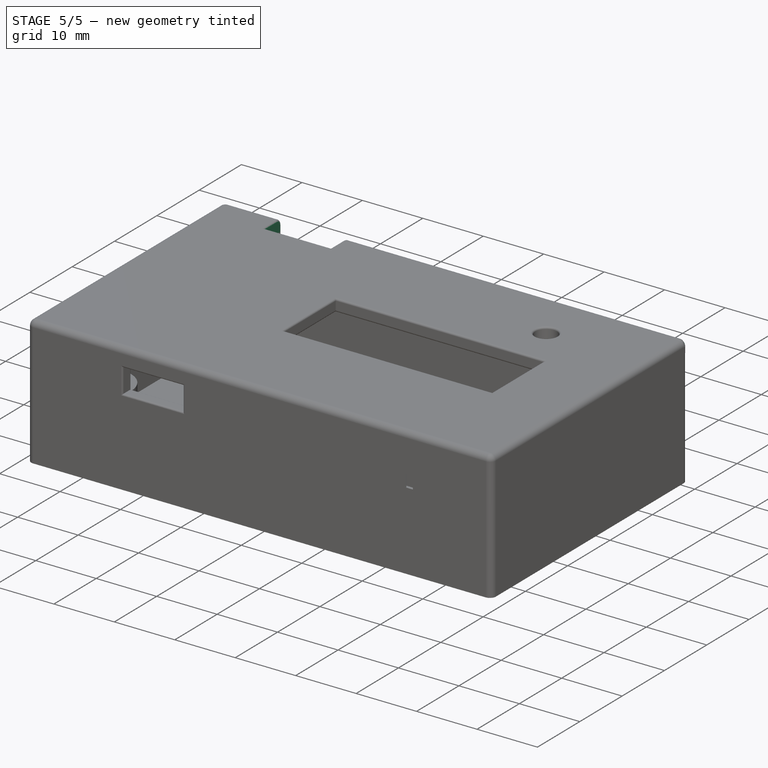
[diagram: stage 5 of 5 — iso view after this stage's code; geometry added in this stage tinted green]
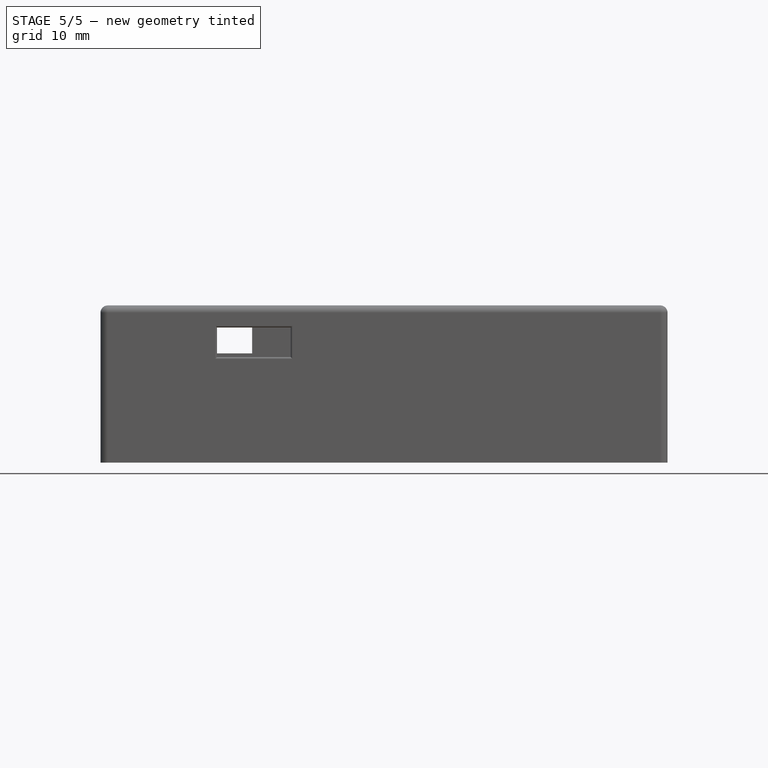
[diagram: stage 5 of 5 — front view after this stage's code; geometry added in this stage tinted green]
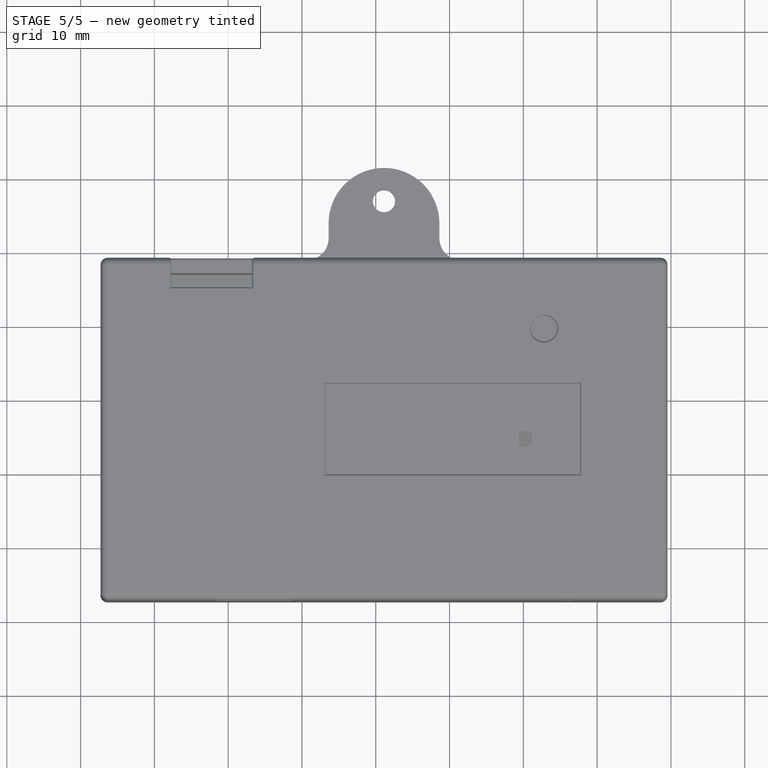
[diagram: stage 5 of 5 — top view after this stage's code; geometry added in this stage tinted green]
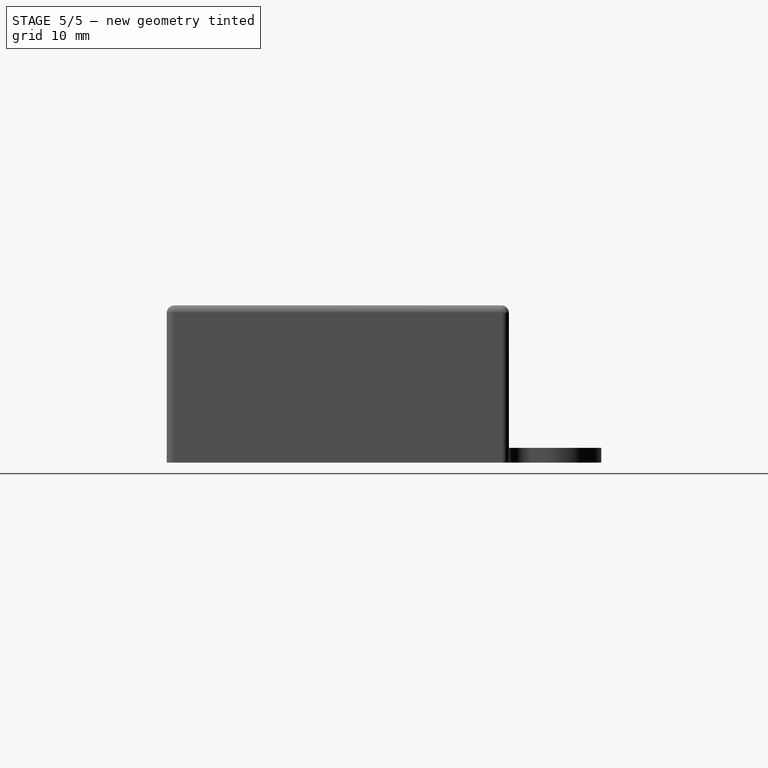
[diagram: stage 5 of 5 — right view after this stage's code; geometry added in this stage tinted green]
FEATURE [PartDesign::Fillet] Fillet002
  Base = -> Fillet001 [Edge52,Edge48,Edge50,Edge11,Edge10,Edge12]
  BaseFeature = -> Fillet001
  Radius = 0.3
  SupportTransform = false
FEATURE [PartDesign::Fillet] Fillet003
  Base = -> Fillet002 [Edge89,Edge87,Edge92,Edge91,Edge38,Edge36,Edge37,Edge39]
  BaseFeature = -> Fillet002
  Radius = 0.25
  SupportTransform = false
FEATURE [PartDesign::Fillet] Fillet004
  Base = -> Fillet003 [Edge22,Edge6,Edge28,Edge8,Edge5]
  BaseFeature = -> Fillet003
  Radius = 0.5
  SupportTransform = false
FEATURE [Sketcher::SketchObject] Sketch016
  ExternalGeometry = -> [Sketch]
  FullyConstrained = false
  MapMode = 5
  Placement = pos=(0,0,-17.3) rot=(1,0,0;3.14159rad)
  sketch-geometry (7):
    g0: Circle CenterX=5.49 CenterY=6.31 CenterZ=0 NormalX=0 NormalY=0 NormalZ=1 AngleXU=0 Radius=0.5
    g1: Circle CenterX=31.115 CenterY=6.31 CenterZ=0 NormalX=0 NormalY=0 NormalZ=1 AngleXU=0 Radius=0.5
    g2: Circle CenterX=56.74 CenterY=6.31 CenterZ=0 NormalX=0 NormalY=0 NormalZ=1 AngleXU=0 Radius=0.5
    g3: Circle CenterX=68.54 CenterY=-8.146 CenterZ=0 NormalX=0 NormalY=0 NormalZ=1 AngleXU=0 Radius=0.5
    g4: Circle CenterX=68.54 CenterY=-23.604 CenterZ=0 NormalX=0 NormalY=0 NormalZ=1 AngleXU=0 Radius=0.5
    g5: Circle CenterX=-6.31 CenterY=-8.146 CenterZ=0 NormalX=0 NormalY=0 NormalZ=1 AngleXU=0 Radius=0.5
    g6: Circle CenterX=-6.31 CenterY=-23.604 CenterZ=0 NormalX=0 NormalY=0 NormalZ=1 AngleXU=0 Radius=0.5
  constraints (23):
    c: Vertical(g5,g6)
    c: Vertical(g3,g4)
    c: Horizontal(g5,g3)
    c: Horizontal(g6,g4)
    c: Horizontal(g1,g0)
    c: Horizontal(g0,g2)
    c: Diameter(g1) = 1
    c: Equal(g1,g0)
    c: Equal(g0,g2)
    c: Equal(g2,g3)
    c: Equal(g3,g4)
    c: Equal(g4,g5)
    c: Equal(g5,g6)
    c: DistanceX(g-4,g5) = 1
    c: DistanceX(g3,g-5) = 1
    c: DistanceY(g2,g-5) = 1
    c: DistanceX(g-4,g1) = 38.425
    c: DistanceX(g-3,g-3) = 76.85
    c: DistanceX(g-4,g0) = 12.8
    c: DistanceX(g2,g-5) = 12.8
    c: DistanceY(g-5,g-5) = 46.37
    c: DistanceY(g-5,g4) = 15.456
    c: DistanceY(g3,g-5) = 15.456
FEATURE [PartDesign::Pad] Pad008
  AllowMultiFace = false
  BaseFeature = -> Fillet004
  Direction = (1,1,1)
  Length = 1.2
  Length2 = 100
  Profile = -> Sketch016
  Type = 0
FEATURE [Sketcher::SketchObject] Sketch018
  ExternalGeometry = -> [Sketch]
  FullyConstrained = false
  MapMode = 5
  Placement = pos=(0,0,0) rot=(1,0,0;3.14159rad)
  sketch-geometry (4):
    g0: LineSegment StartX=2.25 StartY=-35.06 StartZ=0 EndX=13.25 EndY=-35.06 EndZ=0
    g1: LineSegment StartX=13.25 StartY=-35.06 StartZ=0 EndX=13.25 EndY=-39.06 EndZ=0
    g2: LineSegment StartX=13.25 StartY=-39.06 StartZ=0 EndX=2.25 EndY=-39.06 EndZ=0
    g3: LineSegment StartX=2.25 StartY=-39.06 StartZ=0 EndX=2.25 EndY=-35.06 EndZ=0
  constraints (12):
    c: Coincident(g0,g1)
    c: Coincident(g1,g2)
    c: Coincident(g2,g3)
    c: Coincident(g3,g0)
    c: Horizontal(g0)
    c: Horizontal(g2)
    c: Vertical(g1)
    c: Vertical(g3)
    c: DistanceX(g2,g2) = 11
    c: DistanceY(g1,g1) = 4
    c: Horizontal(g2,g-3)
    c: DistanceX(g0) = 2.25
FEATURE [PartDesign::Pocket] Pocket006
  AllowMultiFace = false
  BaseFeature = -> Pad008
  Length = 2
  Length2 = 100
  Profile = -> Sketch018
  Type = 0
FEATURE [Sketcher::SketchObject] Sketch021
  ExternalGeometry = -> [Sketch]
  FullyConstrained = false
  MapMode = 5
  Placement = pos=(0,0,0) rot=(1,0,0;3.14159rad)
  Support = -> [Pocket006]
  sketch-geometry (1):
    g0: Circle CenterX=62.23 CenterY=-25.7175 CenterZ=0 NormalX=0 NormalY=0 NormalZ=1 AngleXU=0 Radius=1.5
  constraints (3):
    c: Vertical(g0,g-3)
    c: DistanceY(g-3,g0) = 6.0325
    c: Radius(g0) = 1.5
FEATURE [PartDesign::Pad] Pad011
  AllowMultiFace = false
  BaseFeature = -> Pocket006
  Direction = (1,1,1)
  Length = 6.7
  Length2 = 100
  Profile = -> Sketch021
  Type = 0
FEATURE [Sketcher::SketchObject] Sketch022
  ExternalGeometry = -> [Pad011]
  FullyConstrained = false
  MapMode = 5
  Placement = pos=(0,0,-6.7) rot=(1,0,0;3.14159rad)
  Support = -> [Pad011]
  sketch-geometry (1):
    g0: Circle CenterX=62.23 CenterY=-25.7175 CenterZ=0 NormalX=0 NormalY=0 NormalZ=1 AngleXU=0 Radius=1
  constraints (2):
    c: Radius(g0) = 1
    c: Coincident(g0,g-3)
FEATURE [PartDesign::Pad] Pad012
  AllowMultiFace = false
  BaseFeature = -> Pad011
  Direction = (1,1,1)
  Length = 1.5
  Length2 = 100
  Profile = -> Sketch022
  Type = 0
FEATURE [PartDesign::Fillet] Fillet015
  Base = -> Pad012 [Edge90,Edge82,Edge80,Edge84,Edge86,Edge88,Edge92]
  BaseFeature = -> Pad012
  Radius = 0.25
  SupportTransform = false
FEATURE [PartDesign::Fillet] Fillet016
  Base = -> Fillet015 [Edge226,Edge99]
  BaseFeature = -> Fillet015
  Radius = 0.3
  SupportTransform = false
FEATURE [PartDesign::Fillet] Fillet017
  Base = -> Fillet016 [Edge52,Edge42,Edge48]
  BaseFeature = -> Fillet016
  Radius = 0.3
  SupportTransform = false
FEATURE [PartDesign::Fillet] Fillet020
  Base = -> Fillet017 [Edge131,Edge83,Edge53,Edge27]
  BaseFeature = -> Fillet017
  Radius = 0.97
  SupportTransform = false
FEATURE [PartDesign::Body] Body002  label="Base_PartDesign"
  Group = -> [Sketch008,ReferencePocket002,Sketch009,Pad003,Sketch010,Pad004,Sketch011,Pocket003,Sketch012,Sketch013,Pocket004,Pad005,Sketch014,Pad006,Sketch015,Pad007,Sketch017,Pocket005,Chamfer,Sketch019,Pad009,Sketch020,Pad010,Sketch024,Sketch025,Pad013,Fillet018,Fillet019,Fillet021,Fillet022]
  Origin = -> Origin002
  Tip = -> Fillet022
FEATURE [PartDesign::Pocket] Pocket007
  AllowMultiFace = false
  BaseFeature = -> Fillet020
  Length = 0.6
  Length2 = 100
  Profile = -> Sketch023
  Type = 0
FEATURE [Sketcher::SketchObject] Sketch026
  ExternalGeometry = -> [Pocket007]
  FullyConstrained = false
  MapMode = 5
  Placement = pos=(57.04,1.7e-15,0) rot=(0.57735,-0.57735,-0.57735;2.0944rad)
  Support = -> [Pocket007]
  sketch-geometry (4):
    g0: LineSegment StartX=6.01 StartY=-4.9 StartZ=0 EndX=6.61 EndY=-4.9 EndZ=0
    g1: LineSegment StartX=6.61 StartY=-4.9 StartZ=0 EndX=6.61 EndY=-5.9 EndZ=0
    g2: LineSegment StartX=6.61 StartY=-5.9 StartZ=0 EndX=6.01 EndY=-5.9 EndZ=0
    g3: LineSegment StartX=6.01 StartY=-5.9 StartZ=0 EndX=6.01 EndY=-4.9 EndZ=0
  constraints (12):
    c: Coincident(g0,g1)
    c: Coincident(g1,g2)
    c: Coincident(g2,g3)
    c: Coincident(g3,g0)
    c: Horizontal(g0)
    c: Horizontal(g2)
    c: Vertical(g1)
    c: Vertical(g3)
    c: DistanceY(g0,g-3) = 1.3
    c: DistanceY(g-4,g1) = 1.3
    c: DistanceX(g-3,g0) = 0.7
    c: DistanceX(g1,g-4) = 0.7
FEATURE [PartDesign::Pocket] Pocket008
  AllowMultiFace = false
  BaseFeature = -> Pocket007
  Length = 0.8
  Length2 = 100
  Profile = -> Sketch026
  Type = 0
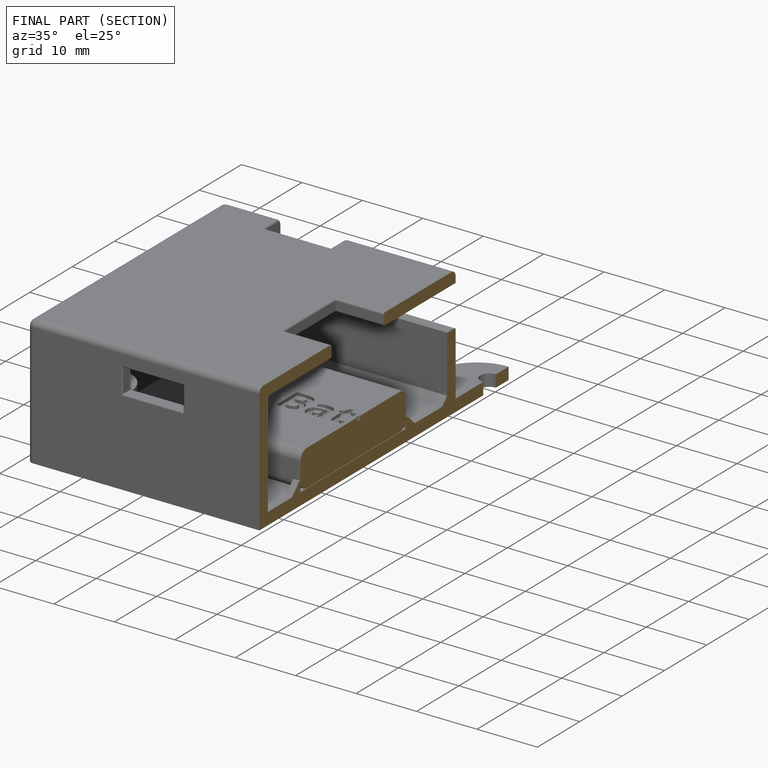
[diagram: finished part — half-section view (interior)]
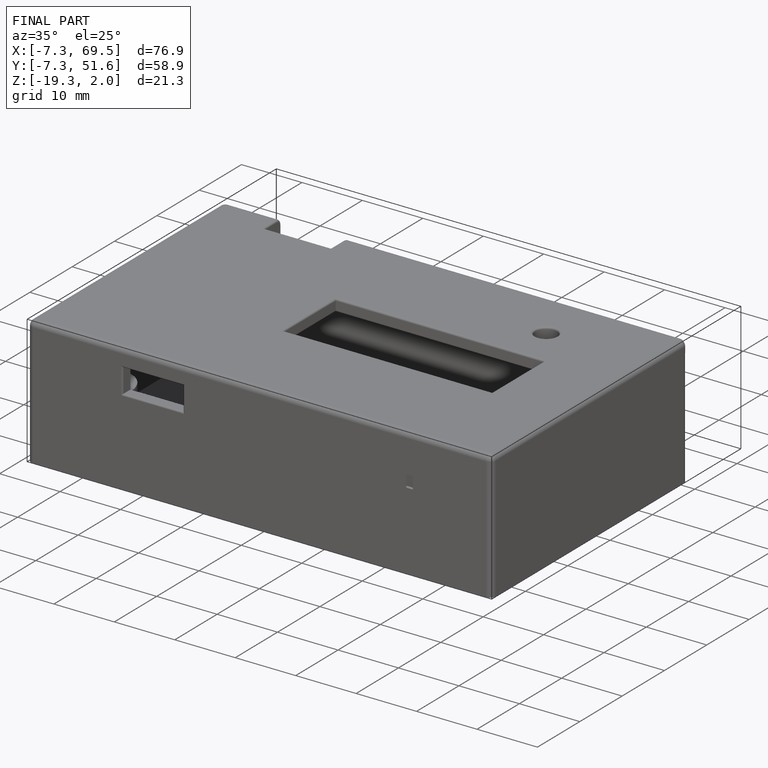
[diagram: finished part — iso view with bounding-box wireframe]
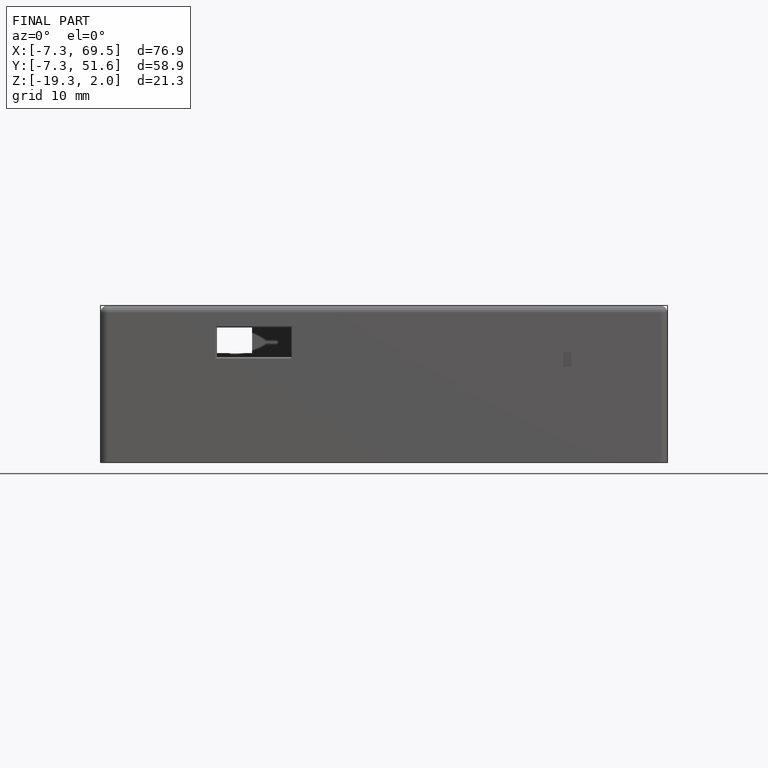
[diagram: finished part — front view with bounding-box wireframe]
